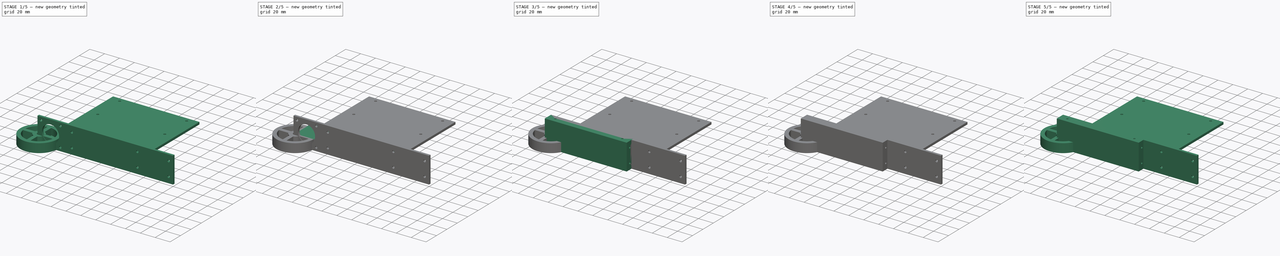
[diagram: build sequence overview — one tinted view per stage of 5, left to right]
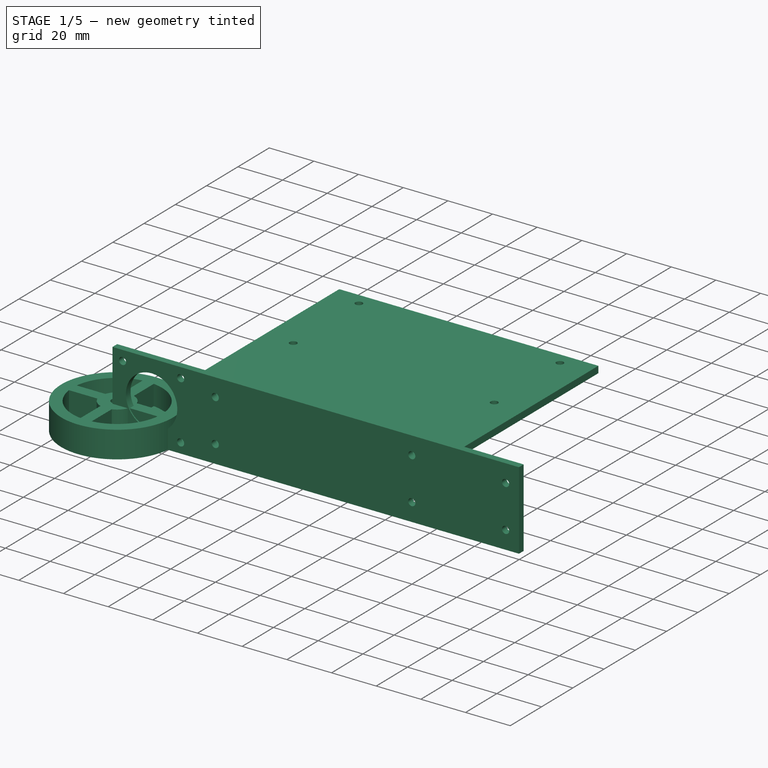
[diagram: stage 1 of 5 — iso view after this stage's code; geometry added in this stage tinted green]
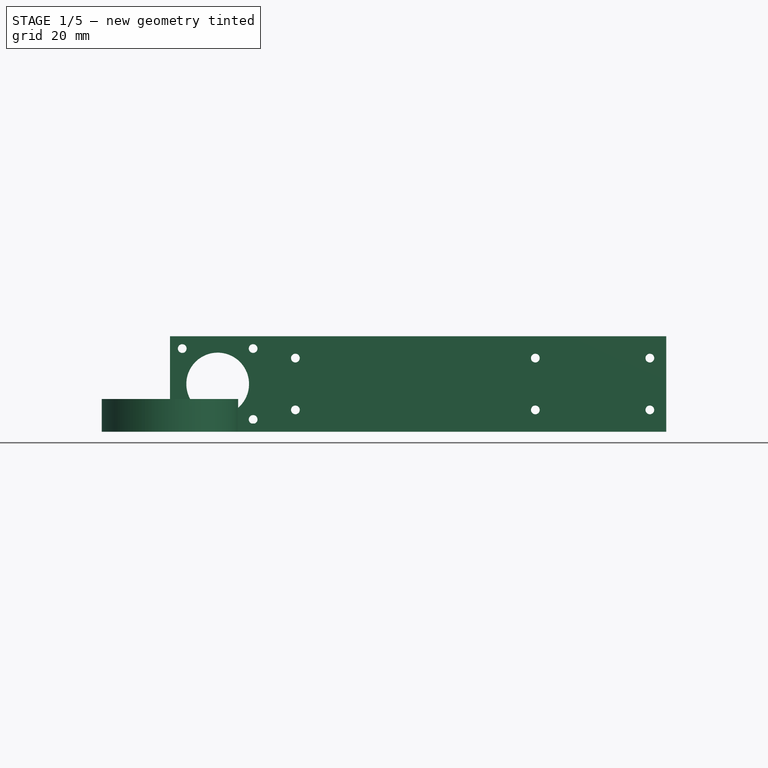
[diagram: stage 1 of 5 — front view after this stage's code; geometry added in this stage tinted green]
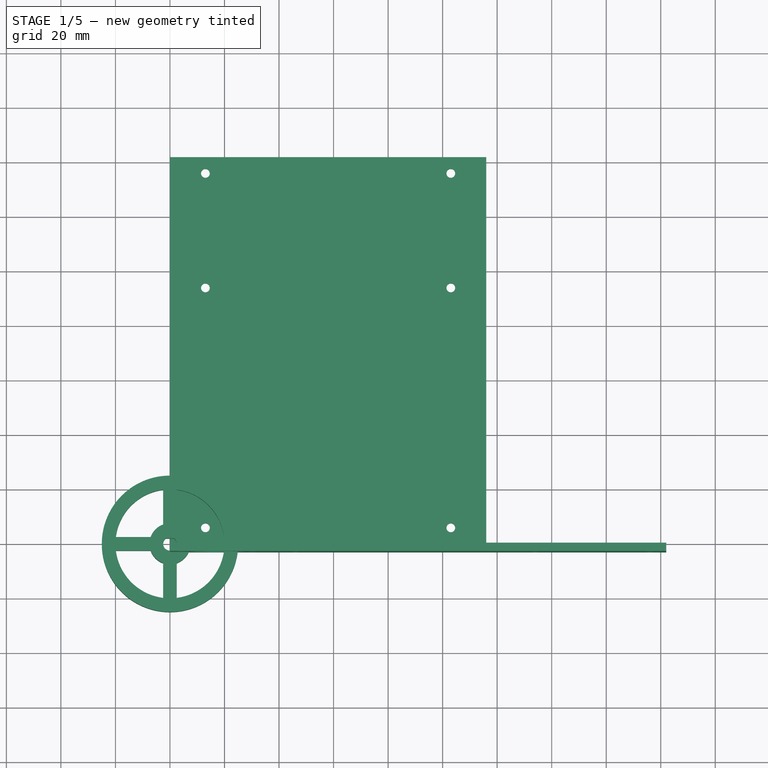
[diagram: stage 1 of 5 — top view after this stage's code; geometry added in this stage tinted green]
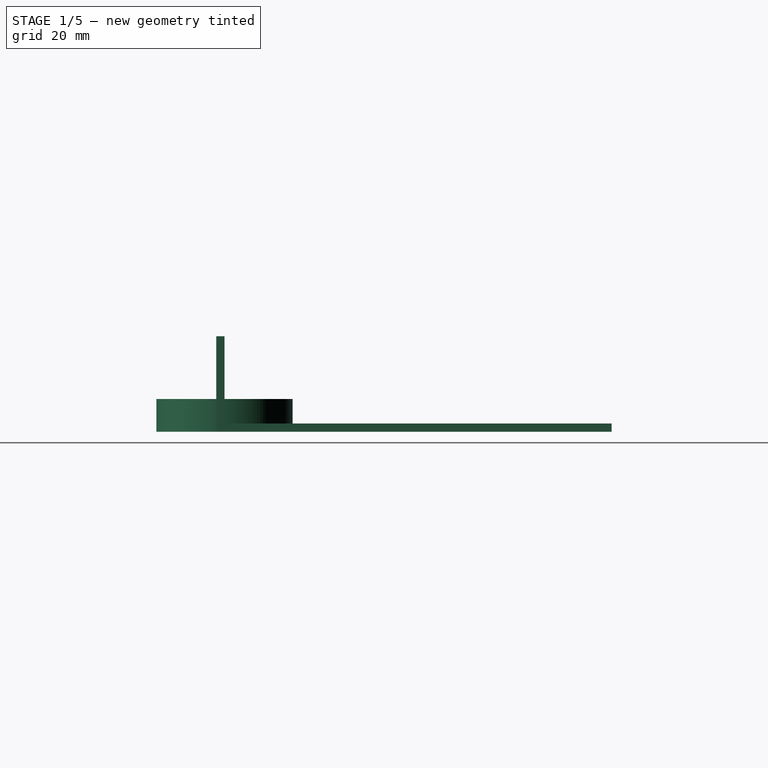
[diagram: stage 1 of 5 — right view after this stage's code; geometry added in this stage tinted green]
FCSTD DOCUMENT  (FreeCAD 0.21R33771 (Git))
Label: SelfBalancing
License: All rights reserved
LicenseURL: http://en.wikipedia.org/wiki/All_rights_reserved
objects: Sketcher::SketchObject×26, PartDesign::Pocket×15, PartDesign::Pad×11, PartDesign::Body×11
note: 89 computed .brp shape members not serialized (recipe doc carries the construction recipe); baked Part::Feature solids carry a one-line shape summary decoded from their .brp

FEATURE [PartDesign::Body] Body005  label="SeparatorBodyThird"
  Group = -> [Sketch016,Pad005,Sketch017,Pocket010,Sketch018,Pocket011,Sketch019,Pocket012,Sketch020,Pocket013,Sketch021,Pocket014]
  Origin = -> Origin005
  Placement = pos=(52,-2.8e-14,35) rot=(0.57735,0.57735,-0.57735;4.18879rad)
  Tip = -> Pocket014
FEATURE [Sketcher::SketchObject] Sketch022
  FullyConstrained = true
  MapMode = 5
  Support = -> [XY_Plane006]
  sketch-geometry (12):
    g0: LineSegment StartX=0 StartY=0 StartZ=0 EndX=116 EndY=0 EndZ=0
    g1: LineSegment StartX=116 StartY=0 StartZ=0 EndX=116 EndY=100 EndZ=0
    g2: LineSegment StartX=116 StartY=100 StartZ=0 EndX=96 EndY=100 EndZ=0
    g3: LineSegment StartX=96 StartY=100 StartZ=0 EndX=96 EndY=88.1 EndZ=0
    g4: LineSegment StartX=96 StartY=88.1 StartZ=0 EndX=20 EndY=88.1 EndZ=0
    g5: LineSegment StartX=20 StartY=88.1 StartZ=0 EndX=20 EndY=100 EndZ=0
    g6: LineSegment StartX=20 StartY=100 StartZ=0 EndX=0 EndY=100 EndZ=0
    g7: LineSegment StartX=0 StartY=100 StartZ=0 EndX=0 EndY=0 EndZ=0
    g8: Circle CenterX=13 CenterY=94 CenterZ=0 NormalX=0 NormalY=0 NormalZ=1 AngleXU=0 Radius=1.6
    g9: Circle CenterX=103 CenterY=94 CenterZ=0 NormalX=0 NormalY=0 NormalZ=1 AngleXU=0 Radius=1.6
    g10: Circle CenterX=13 CenterY=6 CenterZ=0 NormalX=0 NormalY=0 NormalZ=1 AngleXU=0 Radius=1.6
    g11: Circle CenterX=103 CenterY=6 CenterZ=0 NormalX=0 NormalY=0 NormalZ=1 AngleXU=0 Radius=1.6
  constraints (35):
    c: Coincident(g-1,g0)
    c: PointOnObject(g0,g-1)
    c: Coincident(g0,g1)
    c: Vertical(g1)
    c: Horizontal(g2)
    c: Coincident(g2,g3)
    c: Vertical(g3)
    c: Coincident(g3,g4)
    c: Horizontal(g4)
    c: Coincident(g4,g5)
    c: Vertical(g5)
    c: Coincident(g5,g6)
    c: PointOnObject(g6,g-2)
    c: Horizontal(g6)
    c: Coincident(g6,g7)
    c: Coincident(g7,g0)
    c: Coincident(g2,g1)
    c: DistanceX(g0,g0) = 116
    c: DistanceX(g6,g6) = 20
    c: Equal(g6,g2)
    c: Equal(g8,g9)
    c: Equal(g10,g11)
    c: Equal(g11,g9)
    c: Horizontal(g8,g9)
    c: Horizontal(g10,g11)
    c: Vertical(g8,g10)
    c: Vertical(g9,g11)
    c: DistanceY(g10,g8) = 88
    c: DistanceY(g0,g10) = 6
    c: DistanceY(g8,g6) = 6
    c: Horizontal(g5,g2)
    c: Diameter(g8) = 3.2
    c: DistanceX(g0,g10) = 13
    c: DistanceX(g0,g11) = 103
    c: DistanceY(g5,g5) = 11.9
FEATURE [Sketcher::SketchObject] Sketch023
  FullyConstrained = true
  MapMode = 5
  Support = -> [XY_Plane007]
  sketch-geometry (10):
    g0: LineSegment StartX=0 StartY=0 StartZ=0 EndX=116 EndY=0 EndZ=0
    g1: LineSegment StartX=116 StartY=0 StartZ=0 EndX=116 EndY=142 EndZ=0
    g2: LineSegment StartX=116 StartY=142 StartZ=0 EndX=0 EndY=142 EndZ=0
    g3: LineSegment StartX=0 StartY=142 StartZ=0 EndX=0 EndY=0 EndZ=0
    g4: Circle CenterX=13 CenterY=6 CenterZ=0 NormalX=0 NormalY=0 NormalZ=1 AngleXU=0 Radius=1.6
    g5: Circle CenterX=103 CenterY=6 CenterZ=0 NormalX=0 NormalY=0 NormalZ=1 AngleXU=0 Radius=1.6
    g6: Circle CenterX=13 CenterY=94 CenterZ=0 NormalX=0 NormalY=0 NormalZ=1 AngleXU=0 Radius=1.6
    g7: Circle CenterX=103 CenterY=94 CenterZ=0 NormalX=0 NormalY=0 NormalZ=1 AngleXU=0 Radius=1.6
    g8: Circle CenterX=13 CenterY=136 CenterZ=0 NormalX=0 NormalY=0 NormalZ=1 AngleXU=0 Radius=1.6
    g9: Circle CenterX=103 CenterY=136 CenterZ=0 NormalX=0 NormalY=0 NormalZ=1 AngleXU=0 Radius=1.6
  constraints (29):
    c: Coincident(g0,g1)
    c: Coincident(g1,g2)
    c: Coincident(g2,g3)
    c: Coincident(g3,g0)
    c: Horizontal(g0)
    c: Horizontal(g2)
    c: Vertical(g1)
    c: Vertical(g3)
    c: Coincident(g0,g-1)
    c: DistanceY(g1,g1) = 142
    c: DistanceX(g2,g2) = 116
    c: Equal(g8,g9)
    c: Equal(g6,g7)
    c: Equal(g6,g8)
    c: Equal(g4,g5)
    c: Equal(g5,g7)
    c: Vertical(g8,g6)
    c: Vertical(g6,g4)
    c: Vertical(g9,g7)
    c: Vertical(g5,g7)
    c: Horizontal(g8,g9)
    c: Horizontal(g6,g7)
    c: Horizontal(g4,g5)
    c: DistanceX(g0,g4) = 13
    c: DistanceX(g0,g5) = 103
    c: DistanceY(g0,g4) = 6
    c: DistanceY(g7,g1) = 48
    c: DistanceY(g9,g1) = 6
    c: Diameter(g7) = 3.2
FEATURE [PartDesign::Pad] Pad006
  Direction = (0,0,1)
  Length = 3
  Length2 = 10
  Profile = -> Sketch023
  ReferenceAxis = -> Sketch023 [N_Axis]
  Type = 0
FEATURE [PartDesign::Body] Body007  label="BackPanelBody"
  Group = -> [Sketch023,Pad006]
  Origin = -> Origin007
  Placement = pos=(40,113,35) rot=(0,0,-1;1.5708rad)
  Tip = -> Pad006
FEATURE [PartDesign::Pad] Pad007
  Direction = (0,0,1)
  Length = 3
  Length2 = 10
  Profile = -> Sketch022
  ReferenceAxis = -> Sketch022 [N_Axis]
  Type = 0
FEATURE [PartDesign::Body] Body006  label="FrontPanelBody"
  Group = -> [Sketch022,Pad007]
  Origin = -> Origin006
  Placement = pos=(40,113,-3) rot=(0,0,-1;1.5708rad)
  Tip = -> Pad007
FEATURE [Sketcher::SketchObject] Sketch024
  FullyConstrained = true
  MapMode = 5
  Support = -> [XY_Plane008]
  sketch-geometry (20):
    g0: Circle CenterX=0 CenterY=0 CenterZ=0 NormalX=0 NormalY=0 NormalZ=1 AngleXU=0 Radius=25
    g1: ArcOfCircle CenterX=0 CenterY=0 CenterZ=0 NormalX=0 NormalY=0 NormalZ=1 AngleXU=0 Radius=20 StartAngle=1.69612 EndAngle=3.01626
    g2: ArcOfCircle CenterX=0 CenterY=0 CenterZ=0 NormalX=0 NormalY=0 NormalZ=1 AngleXU=0 Radius=7.5 StartAngle=3.48143 EndAngle=4.37255
    g3: LineSegment StartX=-2.5 StartY=7.07107 StartZ=0 EndX=-2.5 EndY=19.8431 EndZ=0
    g4: LineSegment StartX=2.5 StartY=7.07107 StartZ=0 EndX=2.5 EndY=19.8431 EndZ=0
    g5: LineSegment StartX=7.07107 StartY=2.5 StartZ=0 EndX=19.8431 EndY=2.5 EndZ=0
    g6: LineSegment StartX=7.07107 StartY=-2.5 StartZ=0 EndX=19.8431 EndY=-2.5 EndZ=0
    g7: LineSegment StartX=-19.8431 StartY=2.5 StartZ=0 EndX=-7.07107 EndY=2.5 EndZ=0
    g8: LineSegment StartX=-19.8431 StartY=-2.5 StartZ=0 EndX=-7.07107 EndY=-2.5 EndZ=0
    g9: LineSegment StartX=-2.5 StartY=-7.07107 StartZ=0 EndX=-2.5 EndY=-19.8431 EndZ=0
    g10: LineSegment StartX=2.5 StartY=-7.07107 StartZ=0 EndX=2.5 EndY=-19.8431 EndZ=0
    g11: ArcOfCircle CenterX=0 CenterY=0 CenterZ=0 NormalX=0 NormalY=0 NormalZ=1 AngleXU=0 Radius=20 StartAngle=3.26692 EndAngle=4.58706
    g12: ArcOfCircle CenterX=0 CenterY=0 CenterZ=0 NormalX=0 NormalY=0 NormalZ=1 AngleXU=0 Radius=20 StartAngle=4.83772 EndAngle=6.15786
    g13: ArcOfCircle CenterX=0 CenterY=0 CenterZ=0 NormalX=0 NormalY=0 NormalZ=1 AngleXU=0 Radius=20 StartAngle=0.125328 EndAngle=1.44547
    g14: ArcOfCircle CenterX=0 CenterY=0 CenterZ=0 NormalX=0 NormalY=0 NormalZ=1 AngleXU=0 Radius=7.5 StartAngle=1.91063 EndAngle=2.80176
    g15: ArcOfCircle CenterX=0 CenterY=0 CenterZ=0 NormalX=0 NormalY=0 NormalZ=1 AngleXU=0 Radius=7.5 StartAngle=0.339837 EndAngle=1.23096
    g16: ArcOfCircle CenterX=0 CenterY=0 CenterZ=0 NormalX=0 NormalY=0 NormalZ=1 AngleXU=0 Radius=7.5 StartAngle=5.05223 EndAngle=5.94335
    g17: ArcOfCircle CenterX=0 CenterY=0 CenterZ=0 NormalX=0 NormalY=0 NormalZ=1 AngleXU=0 Radius=2.5 StartAngle=2.2143 EndAngle=7.21048
    g18: LineSegment StartX=-1.5 StartY=2 StartZ=0 EndX=1.5 EndY=2 EndZ=0
    g19: LineSegment StartX=-1.5 StartY=-2.5 StartZ=0 EndX=1.5 EndY=-2.5 EndZ=0
  constraints (64):
    c: Coincident(g0,g-1)
    c: Diameter(g0) = 50
    c: Coincident(g1,g0)
    c: Diameter(g1) = 40
    c: Coincident(g2,g0)
    c: Diameter(g2) = 15
    c: Vertical(g3)
    c: Vertical(g4)
    c: Horizontal(g5)
    c: PointOnObject(g5,g1)
    c: PointOnObject(g6,g1)
    c: Horizontal(g7)
    c: Horizontal(g8)
    c: PointOnObject(g9,g1)
    c: Vertical(g9)
    c: PointOnObject(g10,g1)
    c: Equal(g6,g5)
    c: Equal(g10,g9)
    c: Horizontal(g6)
    c: Vertical(g10)
    c: Equal(g3,g4)
    c: Equal(g7,g8)
    c: Horizontal(g7,g5)
    c: Vertical(g3,g9)
    c: DistanceX(g3,g4) = 5
    c: DistanceY(g6,g5) = 5
    c: Coincident(g13,g4)
    c: Coincident(g1,g3)
    c: Equal(g1,g11)
    c: Coincident(g1,g7)
    c: Coincident(g11,g8)
    c: Coincident(g1,g11)
    c: Equal(g11,g12)
    c: PointOnObject(g11,g9)
    c: PointOnObject(g12,g10)
    c: Coincident(g11,g12)
    c: Equal(g12,g13)
    c: PointOnObject(g12,g6)
    c: PointOnObject(g13,g5)
    c: Coincident(g12,g13)
    c: Coincident(g14,g7)
    c: Coincident(g2,g8)
    c: Equal(g2,g14)
    c: Coincident(g15,g4)
    c: Coincident(g14,g3)
    c: Coincident(g2,g14)
    c: Equal(g2,g15)
    c: Coincident(g16,g6)
    c: Coincident(g15,g5)
    c: Coincident(g2,g15)
    c: Equal(g2,g16)
    c: Coincident(g2,g9)
    c: Coincident(g16,g10)
    c: Coincident(g2,g16)
    c: Coincident(g17,g0)
    c: Diameter(g17) = 5
    c: Horizontal(g18)
    c: Horizontal(g19)
    c: Tangent(g19,g17)
    c: Vertical(g18,g19)
    c: Equal(g18,g19)
    c: DistanceY(g19,g18) = 4.5
    c: Coincident(g17,g18)
    c: Coincident(g17,g18)
FEATURE [PartDesign::Pad] Pad008
  Direction = (0,0,1)
  Length = 12
  Length2 = 10
  Profile = -> Sketch024
  ReferenceAxis = -> Sketch024 [N_Axis]
  Type = 0
FEATURE [PartDesign::Body] Body008  label="WheelBody001"
  Group = -> [Sketch024,Pad008]
  Origin = -> Origin008
  Placement = pos=(18,117,18) rot=(-1,0,0;1.5708rad)
  Tip = -> Pad008
FEATURE [Sketcher::SketchObject] Sketch025
  FullyConstrained = true
  MapMode = 5
  Placement = pos=(0,0,0) rot=(1,0,0;1.5708rad)
  Support = -> [XZ_Plane009]
  sketch-geometry (19):
    g0: LineSegment StartX=0 StartY=0 StartZ=0 EndX=182 EndY=0 EndZ=0
    g1: LineSegment StartX=182 StartY=0 StartZ=0 EndX=182 EndY=35 EndZ=0
    g2: LineSegment StartX=182 StartY=35 StartZ=0 EndX=0 EndY=35 EndZ=0
    g3: LineSegment StartX=0 StartY=35 StartZ=0 EndX=0 EndY=0 EndZ=0
    g4: Circle CenterX=17.5 CenterY=17.5 CenterZ=0 NormalX=0 NormalY=0 NormalZ=1 AngleXU=0 Radius=11.5
    g5: Circle CenterX=4.5 CenterY=30.5 CenterZ=0 NormalX=0 NormalY=0 NormalZ=1 AngleXU=0 Radius=1.6
    g6: Circle CenterX=30.5 CenterY=30.5 CenterZ=0 NormalX=0 NormalY=0 NormalZ=1 AngleXU=0 Radius=1.6
    g7: Circle CenterX=4.5 CenterY=4.5 CenterZ=0 NormalX=0 NormalY=0 NormalZ=1 AngleXU=0 Radius=1.6
    g8: Circle CenterX=30.5 CenterY=4.5 CenterZ=0 NormalX=0 NormalY=0 NormalZ=1 AngleXU=0 Radius=1.6
    g9: Circle CenterX=134 CenterY=27 CenterZ=0 NormalX=0 NormalY=0 NormalZ=1 AngleXU=0 Radius=1.6
    g10: Circle CenterX=134 CenterY=8 CenterZ=0 NormalX=0 NormalY=0 NormalZ=1 AngleXU=0 Radius=1.6
    g11: LineSegment StartX=35 StartY=35 StartZ=0 EndX=35 EndY=0 EndZ=0
    g12: LineSegment StartX=0 StartY=35 StartZ=0 EndX=35 EndY=0 EndZ=0
    g13: LineSegment StartX=35 StartY=35 StartZ=0 EndX=17.5 EndY=17.5 EndZ=0
    g14: LineSegment StartX=17.5 StartY=17.5 StartZ=0 EndX=0 EndY=0 EndZ=0
    g15: Circle CenterX=46 CenterY=27 CenterZ=0 NormalX=0 NormalY=0 NormalZ=1 AngleXU=0 Radius=1.6
    g16: Circle CenterX=46 CenterY=8 CenterZ=0 NormalX=0 NormalY=0 NormalZ=1 AngleXU=0 Radius=1.6
    g17: Circle CenterX=176 CenterY=27 CenterZ=0 NormalX=0 NormalY=0 NormalZ=1 AngleXU=0 Radius=1.6
    g18: Circle CenterX=176 CenterY=8 CenterZ=0 NormalX=0 NormalY=0 NormalZ=1 AngleXU=0 Radius=1.6
  constraints (54):
    c: Coincident(g0,g1)
    c: Coincident(g1,g2)
    c: Coincident(g2,g3)
    c: Coincident(g3,g0)
    c: Horizontal(g0)
    c: Horizontal(g2)
    c: Vertical(g1)
    c: Vertical(g3)
    c: Coincident(g0,g-1)
    c: Equal(g5,g6)
    c: Equal(g7,g8)
    c: Equal(g7,g5)
    c: Horizontal(g5,g6)
    c: Horizontal(g7,g8)
    c: Vertical(g5,g7)
    c: Vertical(g6,g8)
    c: Diameter(g4) = 23
    c: DistanceX(g2,g2) = 182
    c: Equal(g9,g10)
    c: Equal(g6,g9)
    c: Vertical(g9,g10)
    c: DistanceX(g5,g6) = 26
    c: DistanceY(g7,g5) = 26
    c: DistanceY(g1,g1) = 35
    c: PointOnObject(g11,g2)
    c: PointOnObject(g11,g0)
    c: Vertical(g11)
    c: Coincident(g2,g12)
    c: Coincident(g12,g11)
    c: Coincident(g11,g13)
    c: PointOnObject(g13,g12)
    c: Coincident(g13,g14)
    c: Coincident(g14,g0)
    c: Parallel(g14,g13)
    c: DistanceX(g2,g11) = 35
    c: PointOnObject(g6,g13)
    c: PointOnObject(g5,g12)
    c: Coincident(g4,g13)
    c: Vertical(g15,g16)
    c: DistanceX(g9,g1) = 48
    c: DistanceY(g16,g15) = 19
    c: DistanceX(g15,g1) = 136
    c: DistanceY(g15,g2) = 8
    c: Equal(g15,g6)
    c: Equal(g16,g8)
    c: Diameter(g9) = 3.2
    c: Equal(g9,g17)
    c: Equal(g17,g18)
    c: Horizontal(g15,g9)
    c: Horizontal(g9,g17)
    c: Horizontal(g10,g18)
    c: Horizontal(g10,g16)
    c: Vertical(g17,g18)
    c: DistanceX(g17,g1) = 6
FEATURE [PartDesign::Pad] Pad009
  Direction = (0,-1,-2e-16)
  Length = 3
  Length2 = 10
  Placement = pos=(0,0,0) rot=(1,0,0;1.5708rad)
  Profile = -> Sketch025
  ReferenceAxis = -> Sketch025 [N_Axis]
  Type = 0
FEATURE [PartDesign::Body] Body009  label="SideBody001"
  Group = -> [Sketch025,Pad009]
  Origin = -> Origin009
  Placement = pos=(0,113,0) rot=(0,0,1;0rad)
  Tip = -> Pad009
FEATURE [Sketcher::SketchObject] Sketch026
  FullyConstrained = true
  MapMode = 5
  Support = -> [XY_Plane010]
  sketch-geometry (2):
    g0: Circle CenterX=0 CenterY=0 CenterZ=0 NormalX=0 NormalY=0 NormalZ=1 AngleXU=0 Radius=25
    g1: Circle CenterX=0 CenterY=0 CenterZ=0 NormalX=0 NormalY=0 NormalZ=1 AngleXU=0 Radius=23.5
  constraints (4):
    c: Coincident(g0,g-1)
    c: Coincident(g1,g0)
    c: Diameter(g1) = 47
    c: Diameter(g0) = 50
FEATURE [PartDesign::Pad] Pad010
  Direction = (0,0,1)
  Length = 12
  Length2 = 10
  Profile = -> Sketch026
  ReferenceAxis = -> Sketch026 [N_Axis]
  Type = 0
FEATURE [PartDesign::Body] Body010  label="WheelRubberBody001"
  Group = -> [Sketch026,Pad010]
  Origin = -> Origin010
  Placement = pos=(18,129,18) rot=(1,0,0;1.5708rad)
  Tip = -> Pad010
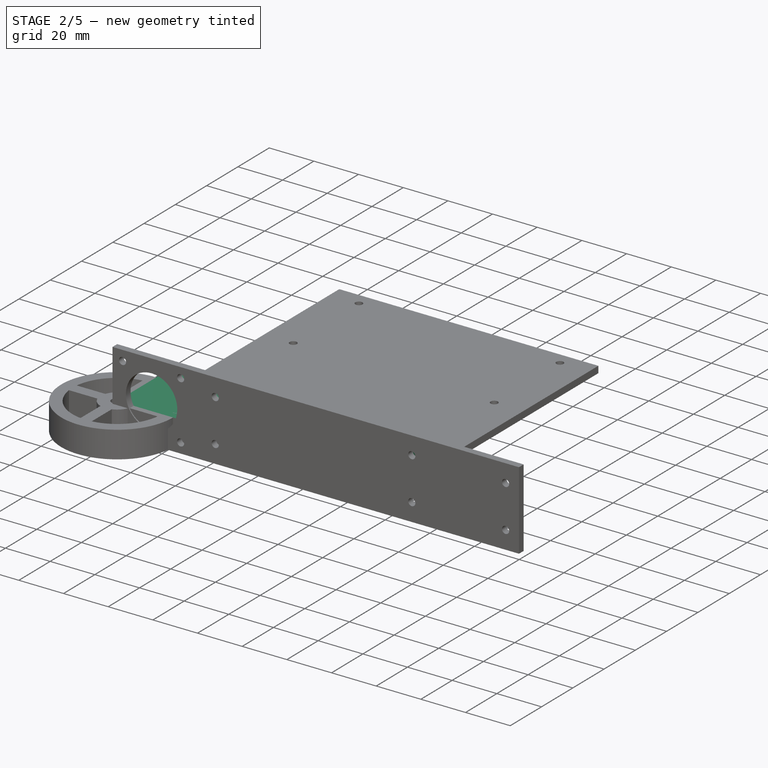
[diagram: stage 2 of 5 — iso view after this stage's code; geometry added in this stage tinted green]
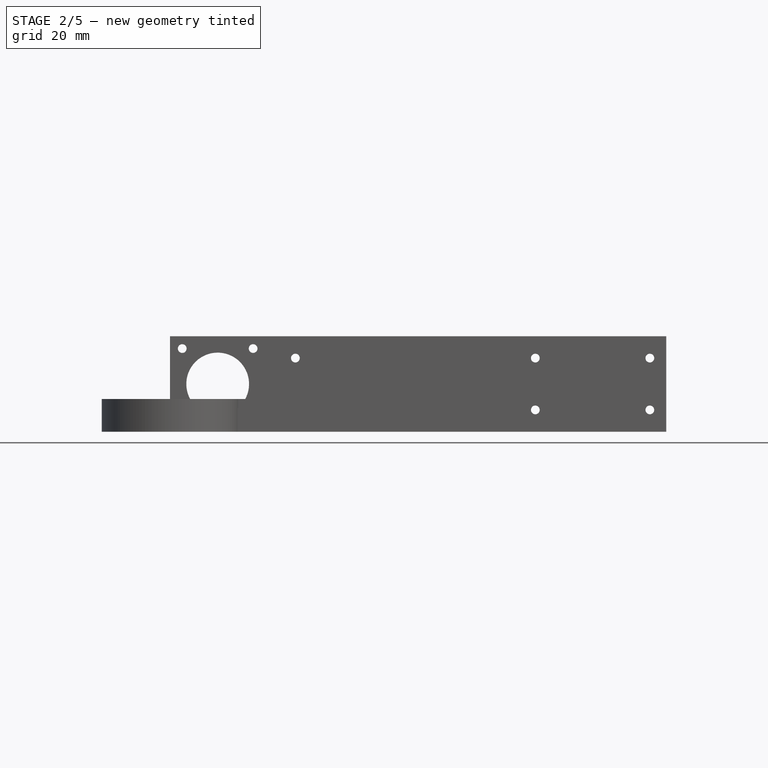
[diagram: stage 2 of 5 — front view after this stage's code; geometry added in this stage tinted green]
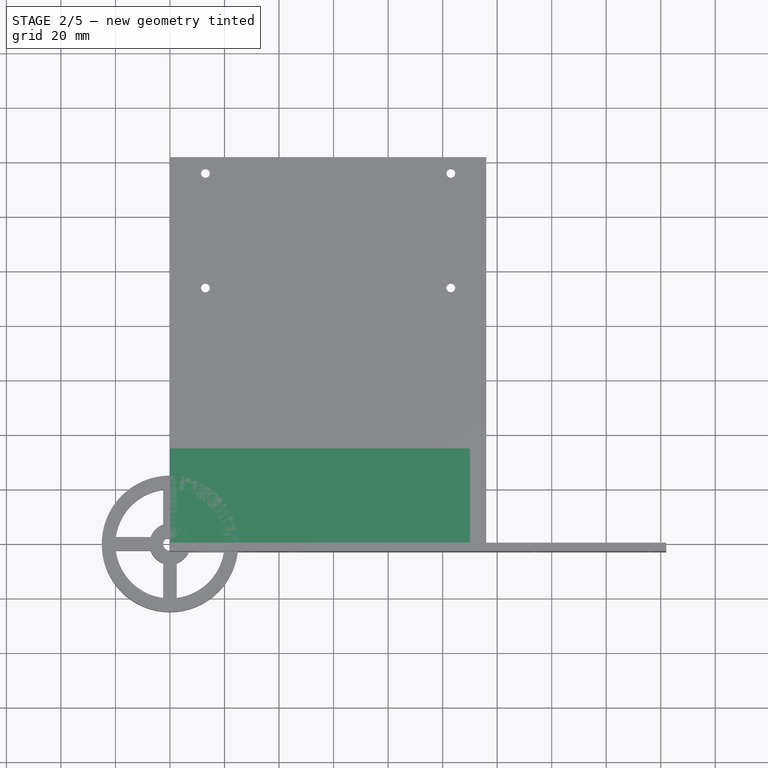
[diagram: stage 2 of 5 — top view after this stage's code; geometry added in this stage tinted green]
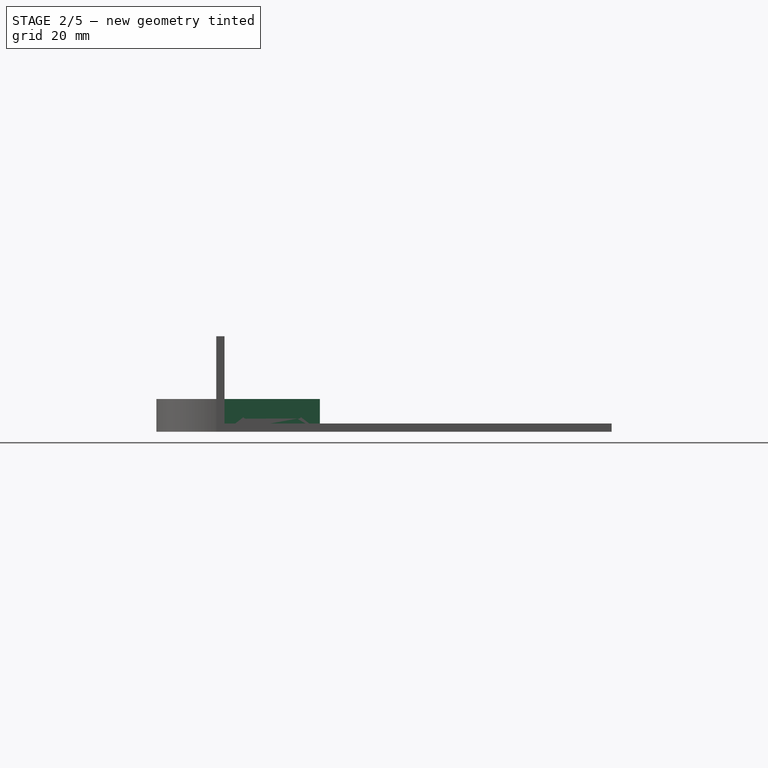
[diagram: stage 2 of 5 — right view after this stage's code; geometry added in this stage tinted green]
FEATURE [PartDesign::Body] Body004  label="SeparatorBodySecond"
  Group = -> [Sketch006,Pad004,Sketch007,Pocket002,Sketch008,Pocket003,Sketch012,Pocket006,Sketch013,Pocket007,Sketch014,Pocket008,Sketch015,Pocket009]
  Origin = -> Origin004
  Placement = pos=(128,-2.8e-14,0) rot=(0,0,1;1.5708rad)
  Tip = -> Pocket009
FEATURE [Sketcher::SketchObject] Sketch016
  FullyConstrained = true
  MapMode = 5
  Support = -> [XY_Plane005]
  sketch-geometry (4):
    g0: LineSegment StartX=0 StartY=0 StartZ=0 EndX=110 EndY=0 EndZ=0
    g1: LineSegment StartX=110 StartY=0 StartZ=0 EndX=110 EndY=35 EndZ=0
    g2: LineSegment StartX=110 StartY=35 StartZ=0 EndX=0 EndY=35 EndZ=0
    g3: LineSegment StartX=0 StartY=35 StartZ=0 EndX=0 EndY=0 EndZ=0
  constraints (11):
    c: Coincident(g0,g1)
    c: Coincident(g1,g2)
    c: Coincident(g2,g3)
    c: Coincident(g3,g0)
    c: Horizontal(g0)
    c: Horizontal(g2)
    c: Vertical(g1)
    c: Vertical(g3)
    c: Coincident(g0,g-1)
    c: DistanceY(g1,g1) = 35
    c: DistanceX(g2,g2) = 110
FEATURE [PartDesign::Pad] Pad005
  Direction = (0,0,1)
  Length = 12
  Length2 = 10
  Profile = -> Sketch016
  ReferenceAxis = -> Sketch016 [N_Axis]
  Type = 0
FEATURE [Sketcher::SketchObject] Sketch017
  FullyConstrained = true
  MapMode = 5
  Placement = pos=(0,0,0) rot=(0.57735,-0.57735,-0.57735;2.0944rad)
  Support = -> [Pad005]
  sketch-geometry (2):
    g0: Circle CenterX=-27 CenterY=6 CenterZ=0 NormalX=0 NormalY=0 NormalZ=1 AngleXU=0 Radius=1.25
    g1: Circle CenterX=-8 CenterY=6 CenterZ=0 NormalX=0 NormalY=0 NormalZ=1 AngleXU=0 Radius=1.25
  constraints (6):
    c: Equal(g0,g1)
    c: Horizontal(g0,g1)
    c: DistanceX(g1,g-1) = 8
    c: DistanceX(g0,g1) = 19
    c: DistanceY(g-1,g1) = 6
    c: Diameter(g1) = 2.5
FEATURE [PartDesign::Pocket] Pocket010
  BaseFeature = -> Pad005
  Direction = (1,0,0)
  Length = 20
  Length2 = 5
  Profile = -> Sketch017
  ReferenceAxis = -> Sketch017 [N_Axis]
  Type = 0
FEATURE [Sketcher::SketchObject] Sketch018
  FullyConstrained = true
  MapMode = 5
  Placement = pos=(110,0,0) rot=(0.57735,0.57735,0.57735;2.0944rad)
  Support = -> [Pocket010]
  sketch-geometry (2):
    g0: Circle CenterX=8 CenterY=6 CenterZ=0 NormalX=0 NormalY=0 NormalZ=1 AngleXU=0 Radius=1.25
    g1: Circle CenterX=27 CenterY=6 CenterZ=0 NormalX=0 NormalY=0 NormalZ=1 AngleXU=0 Radius=1.25
  constraints (6):
    c: Equal(g1,g0)
    c: DistanceX(g-1,g0) = 8
    c: DistanceX(g0,g1) = 19
    c: Diameter(g1) = 2.5
    c: DistanceY(g-1,g0) = 6
    c: Horizontal(g0,g1)
FEATURE [PartDesign::Pocket] Pocket011
  BaseFeature = -> Pocket010
  Direction = (-1,0,0)
  Length = 20
  Length2 = 5
  Profile = -> Sketch018
  ReferenceAxis = -> Sketch018 [N_Axis]
  Type = 0
FEATURE [Sketcher::SketchObject] Sketch019
  FullyConstrained = true
  MapMode = 5
  Placement = pos=(0,35,0) rot=(0,0.707107,0.707107;3.14159rad)
  Support = -> [Pocket011]
  sketch-geometry (2):
    g0: Circle CenterX=-100 CenterY=6 CenterZ=0 NormalX=0 NormalY=0 NormalZ=1 AngleXU=0 Radius=1.25
    g1: Circle CenterX=-10 CenterY=6 CenterZ=0 NormalX=0 NormalY=0 NormalZ=1 AngleXU=0 Radius=1.25
  constraints (6):
    c: Equal(g0,g1)
    c: Horizontal(g0,g1)
    c: DistanceY(g-1,g1) = 6
    c: DistanceX(g1,g-1) = 10
    c: DistanceX(g0,g-1) = 100
    c: Diameter(g1) = 2.5
FEATURE [PartDesign::Pocket] Pocket012
  BaseFeature = -> Pocket011
  Direction = (0,-1,2e-16)
  Length = 7
  Length2 = 5
  Profile = -> Sketch019
  ReferenceAxis = -> Sketch019 [N_Axis]
  Type = 0
FEATURE [Sketcher::SketchObject] Sketch020
  FullyConstrained = true
  MapMode = 5
  Placement = pos=(0,0,0) rot=(1,0,0;1.5708rad)
  Support = -> [Pocket012]
  sketch-geometry (2):
    g0: Circle CenterX=10 CenterY=6 CenterZ=0 NormalX=0 NormalY=0 NormalZ=1 AngleXU=0 Radius=1.25
    g1: Circle CenterX=100 CenterY=6 CenterZ=0 NormalX=0 NormalY=0 NormalZ=1 AngleXU=0 Radius=1.25
  constraints (6):
    c: Horizontal(g0,g1)
    c: Equal(g0,g1)
    c: DistanceX(g-1,g0) = 10
    c: DistanceX(g-1,g1) = 100
    c: Diameter(g1) = 2.5
    c: DistanceY(g-1,g0) = 6
FEATURE [PartDesign::Pocket] Pocket013
  BaseFeature = -> Pocket012
  Direction = (0,1,-2e-16)
  Length = 7
  Length2 = 5
  Profile = -> Sketch020
  ReferenceAxis = -> Sketch020 [N_Axis]
  Type = 0
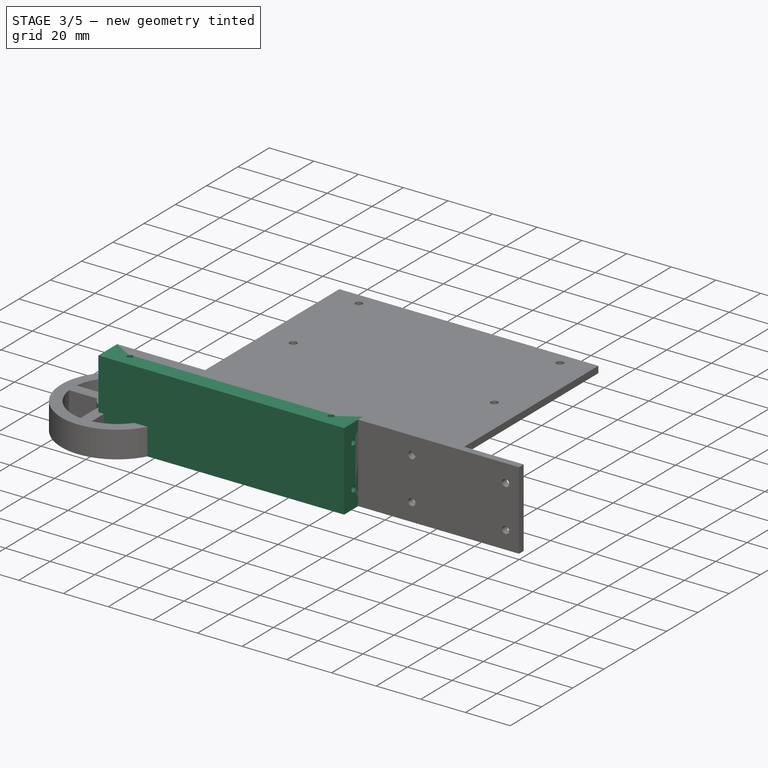
[diagram: stage 3 of 5 — iso view after this stage's code; geometry added in this stage tinted green]
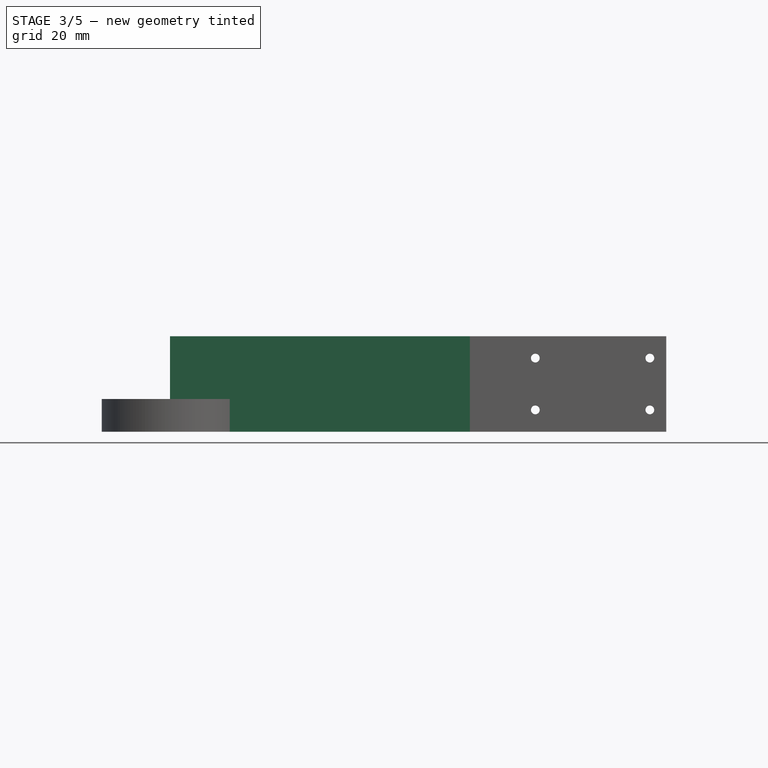
[diagram: stage 3 of 5 — front view after this stage's code; geometry added in this stage tinted green]
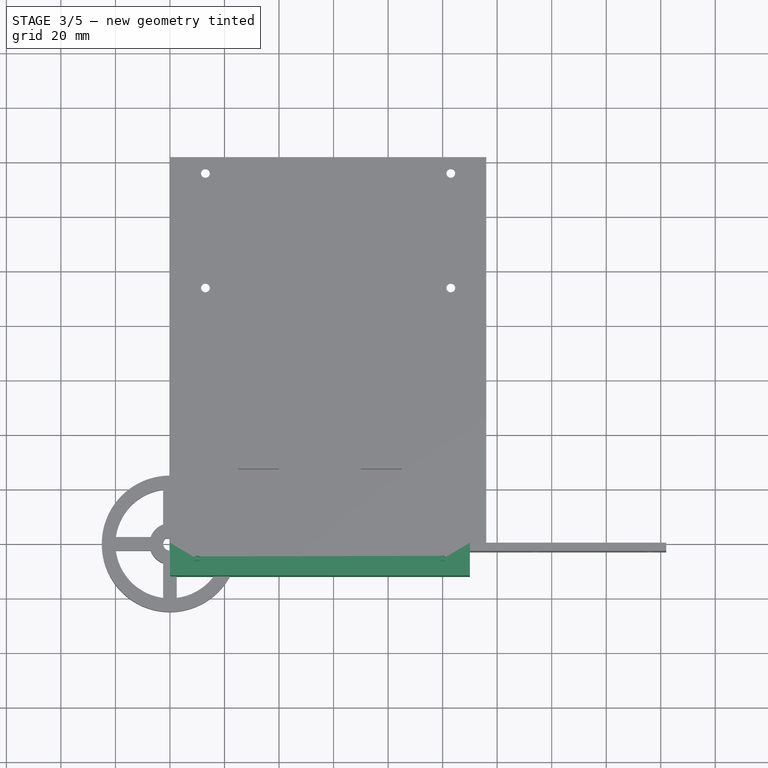
[diagram: stage 3 of 5 — top view after this stage's code; geometry added in this stage tinted green]
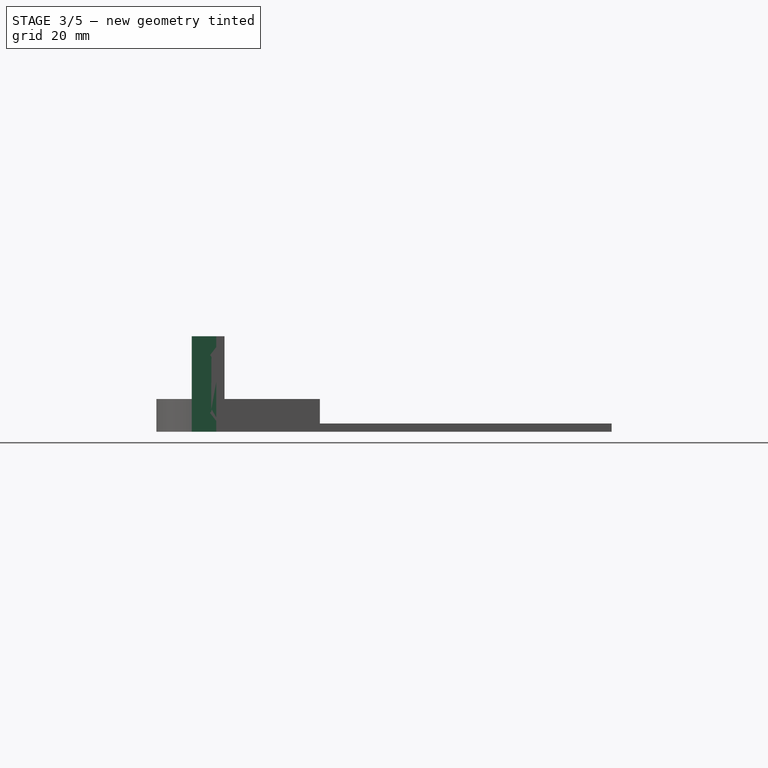
[diagram: stage 3 of 5 — right view after this stage's code; geometry added in this stage tinted green]
FEATURE [Sketcher::SketchObject] Sketch006
  FullyConstrained = true
  MapMode = 5
  Placement = pos=(0,0,0) rot=(1,0,0;1.5708rad)
  Support = -> [XZ_Plane004]
  sketch-geometry (4):
    g0: LineSegment StartX=0 StartY=0 StartZ=0 EndX=110 EndY=0 EndZ=0
    g1: LineSegment StartX=110 StartY=0 StartZ=0 EndX=110 EndY=35 EndZ=0
    g2: LineSegment StartX=110 StartY=35 StartZ=0 EndX=0 EndY=35 EndZ=0
    g3: LineSegment StartX=0 StartY=35 StartZ=0 EndX=0 EndY=0 EndZ=0
  constraints (11):
    c: Coincident(g0,g1)
    c: Coincident(g1,g2)
    c: Coincident(g2,g3)
    c: Coincident(g3,g0)
    c: Horizontal(g0)
    c: Horizontal(g2)
    c: Vertical(g1)
    c: Vertical(g3)
    c: Coincident(g0,g-1)
    c: DistanceX(g2,g2) = 110
    c: DistanceY(g1,g1) = 35
FEATURE [PartDesign::Pad] Pad004
  Direction = (0,-1,2e-16)
  Length = 12
  Length2 = 10
  Placement = pos=(0,0,0) rot=(1,0,0;1.5708rad)
  Profile = -> Sketch006
  ReferenceAxis = -> Sketch006 [N_Axis]
  Type = 0
FEATURE [Sketcher::SketchObject] Sketch007
  FullyConstrained = true
  MapMode = 5
  Placement = pos=(110,0,0) rot=(0.707107,0,0.707107;3.14159rad)
  Support = -> [Pad004]
  sketch-geometry (2):
    g0: Circle CenterX=8 CenterY=6 CenterZ=0 NormalX=0 NormalY=0 NormalZ=1 AngleXU=0 Radius=1.25
    g1: Circle CenterX=27 CenterY=6 CenterZ=0 NormalX=0 NormalY=0 NormalZ=1 AngleXU=0 Radius=1.25
  constraints (6):
    c: Diameter(g1) = 2.5
    c: Diameter(g0) = 2.5
    c: DistanceX(g0,g1) = 19
    c: DistanceX(g-1,g0) = 8
    c: DistanceY(g-1,g0) = 6
    c: Horizontal(g0,g1)
FEATURE [PartDesign::Pocket] Pocket002
  BaseFeature = -> Pad004
  Direction = (-1,0,2e-16)
  Length = 20
  Length2 = 5
  Placement = pos=(0,0,0) rot=(1,0,0;1.5708rad)
  Profile = -> Sketch007
  ReferenceAxis = -> Sketch007 [N_Axis]
  Type = 0
FEATURE [Sketcher::SketchObject] Sketch008
  FullyConstrained = true
  MapMode = 5
  Placement = pos=(0,0,0) rot=(0.707107,0,-0.707107;3.14159rad)
  Support = -> [Pocket002]
  sketch-geometry (2):
    g0: Circle CenterX=-27 CenterY=6 CenterZ=0 NormalX=0 NormalY=0 NormalZ=1 AngleXU=0 Radius=1.25
    g1: Circle CenterX=-8 CenterY=6 CenterZ=0 NormalX=0 NormalY=0 NormalZ=1 AngleXU=0 Radius=1.25
  constraints (6):
    c: Diameter(g0) = 2.5
    c: Diameter(g1) = 2.5
    c: DistanceX(g0,g1) = 19
    c: DistanceX(g1,g-1) = 8
    c: DistanceY(g-1,g1) = 6
    c: Horizontal(g0,g1)
FEATURE [PartDesign::Pocket] Pocket003
  BaseFeature = -> Pocket002
  Direction = (1,0,2e-16)
  Length = 20
  Length2 = 5
  Placement = pos=(0,0,0) rot=(1,0,0;1.5708rad)
  Profile = -> Sketch008
  ReferenceAxis = -> Sketch008 [N_Axis]
  Type = 0
FEATURE [PartDesign::Body] Body003  label="SeparatorBodyTop"
  Group = -> [Sketch003,Pad003,Sketch004,Pocket,Sketch005,Pocket001,Sketch010,Pocket004,Sketch011,Pocket005]
  Origin = -> Origin003
  Placement = pos=(170,-3.8e-14,0) rot=(0,0,1;1.5708rad)
  Tip = -> Pocket005
FEATURE [Sketcher::SketchObject] Sketch012
  FullyConstrained = true
  MapMode = 5
  Placement = pos=(0,2.32e-14,35) rot=(0,0,1;3.14159rad)
  Support = -> [Pocket003]
  sketch-geometry (2):
    g0: Circle CenterX=-100 CenterY=6 CenterZ=0 NormalX=0 NormalY=0 NormalZ=1 AngleXU=0 Radius=1.25
    g1: Circle CenterX=-10 CenterY=6 CenterZ=0 NormalX=0 NormalY=0 NormalZ=1 AngleXU=0 Radius=1.25
  constraints (6):
    c: Equal(g0,g1)
    c: Diameter(g1) = 2.5
    c: DistanceX(g1,g-1) = 10
    c: DistanceX(g0,g-1) = 100
    c: DistanceY(g-1,g1) = 6
    c: Horizontal(g0,g1)
FEATURE [PartDesign::Pocket] Pocket006
  BaseFeature = -> Pocket003
  Direction = (0,-2e-16,-1)
  Length = 7
  Length2 = 5
  Placement = pos=(0,0,0) rot=(1,0,0;1.5708rad)
  Profile = -> Sketch012
  ReferenceAxis = -> Sketch012 [N_Axis]
  Type = 0
FEATURE [Sketcher::SketchObject] Sketch013
  FullyConstrained = true
  MapMode = 5
  Placement = pos=(0,0,0) rot=(1,0,0;3.14159rad)
  Support = -> [Pocket006]
  sketch-geometry (2):
    g0: Circle CenterX=10 CenterY=6 CenterZ=0 NormalX=0 NormalY=0 NormalZ=1 AngleXU=0 Radius=1.25
    g1: Circle CenterX=100 CenterY=6 CenterZ=0 NormalX=0 NormalY=0 NormalZ=1 AngleXU=0 Radius=1.25
  constraints (6):
    c: Equal(g0,g1)
    c: Horizontal(g0,g1)
    c: Diameter(g1) = 2.5
    c: DistanceX(g-1,g0) = 10
    c: DistanceX(g-1,g1) = 100
    c: DistanceY(g-1,g0) = 6
FEATURE [PartDesign::Pocket] Pocket007
  BaseFeature = -> Pocket006
  Direction = (0,2e-16,1)
  Length = 7
  Length2 = 5
  Placement = pos=(0,0,0) rot=(1,0,0;1.5708rad)
  Profile = -> Sketch013
  ReferenceAxis = -> Sketch013 [N_Axis]
  Type = 0
FEATURE [Sketcher::SketchObject] Sketch021
  FullyConstrained = true
  MapMode = 5
  Placement = pos=(0,0,12) rot=(0,0,1;0rad)
  Support = -> [Pocket013]
  sketch-geometry (8):
    g0: LineSegment StartX=25 StartY=27.5 StartZ=0 EndX=40 EndY=27.5 EndZ=0
    g1: LineSegment StartX=40 StartY=27.5 StartZ=0 EndX=40 EndY=7.5 EndZ=0
    g2: LineSegment StartX=40 StartY=7.5 StartZ=0 EndX=25 EndY=7.5 EndZ=0
    g3: LineSegment StartX=25 StartY=7.5 StartZ=0 EndX=25 EndY=27.5 EndZ=0
    g4: LineSegment StartX=70 StartY=27.5 StartZ=0 EndX=85 EndY=27.5 EndZ=0
    g5: LineSegment StartX=85 StartY=27.5 StartZ=0 EndX=85 EndY=7.5 EndZ=0
    g6: LineSegment StartX=85 StartY=7.5 StartZ=0 EndX=70 EndY=7.5 EndZ=0
    g7: LineSegment StartX=70 StartY=7.5 StartZ=0 EndX=70 EndY=27.5 EndZ=0
  constraints (24):
    c: Coincident(g0,g1)
    c: Coincident(g1,g2)
    c: Coincident(g2,g3)
    c: Coincident(g3,g0)
    c: Horizontal(g0)
    c: Horizontal(g2)
    c: Vertical(g1)
    c: Vertical(g3)
    c: Coincident(g4,g5)
    c: Coincident(g5,g6)
    c: Coincident(g6,g7)
    c: Coincident(g7,g4)
    c: Horizontal(g4)
    c: Horizontal(g6)
    c: Vertical(g5)
    c: Vertical(g7)
    c: Equal(g4,g0)
    c: Equal(g1,g5)
    c: Horizontal(g0,g4)
    c: DistanceX(g0,g0) = 15
    c: DistanceY(g1,g1) = 20
    c: DistanceX(g-1,g1) = 40
    c: DistanceX(g-1,g6) = 70
    c: DistanceY(g-1,g2) = 7.5
FEATURE [PartDesign::Pocket] Pocket014
  BaseFeature = -> Pocket013
  Direction = (0,0,-1)
  Length = 12
  Length2 = 5
  Profile = -> Sketch021
  ReferenceAxis = -> Sketch021 [N_Axis]
  Type = 0
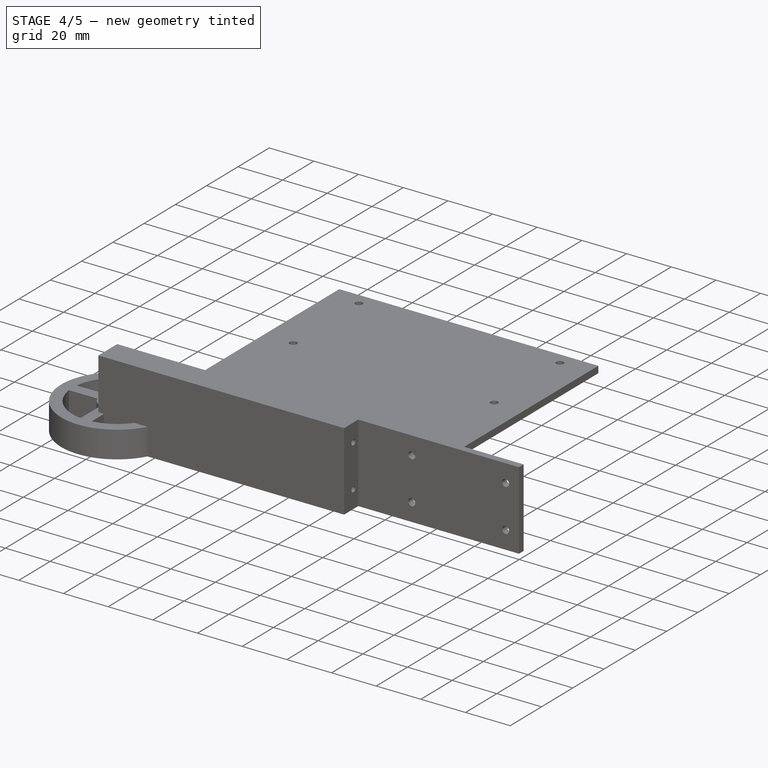
[diagram: stage 4 of 5 — iso view after this stage's code; geometry added in this stage tinted green]
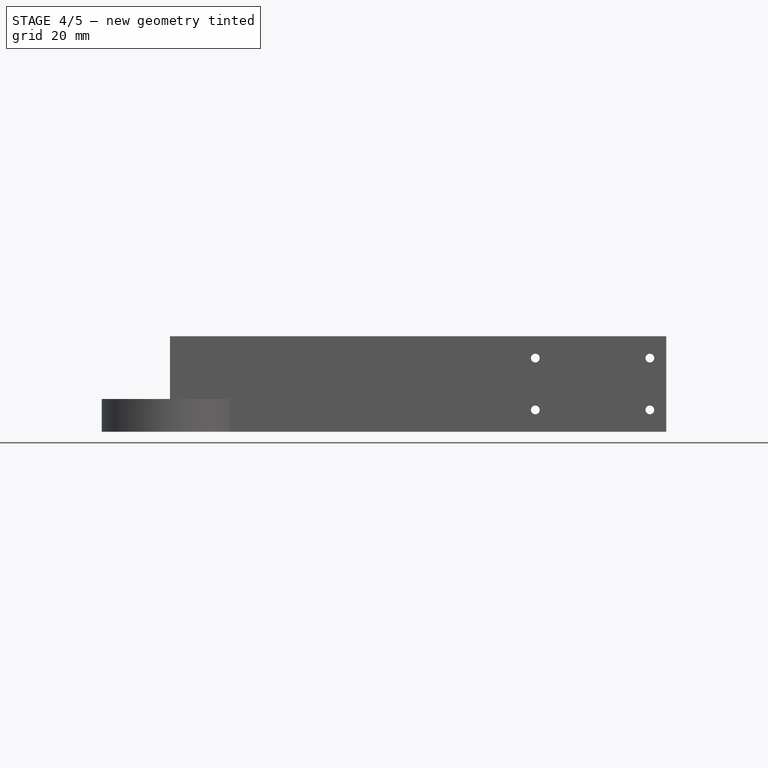
[diagram: stage 4 of 5 — front view after this stage's code; geometry added in this stage tinted green]
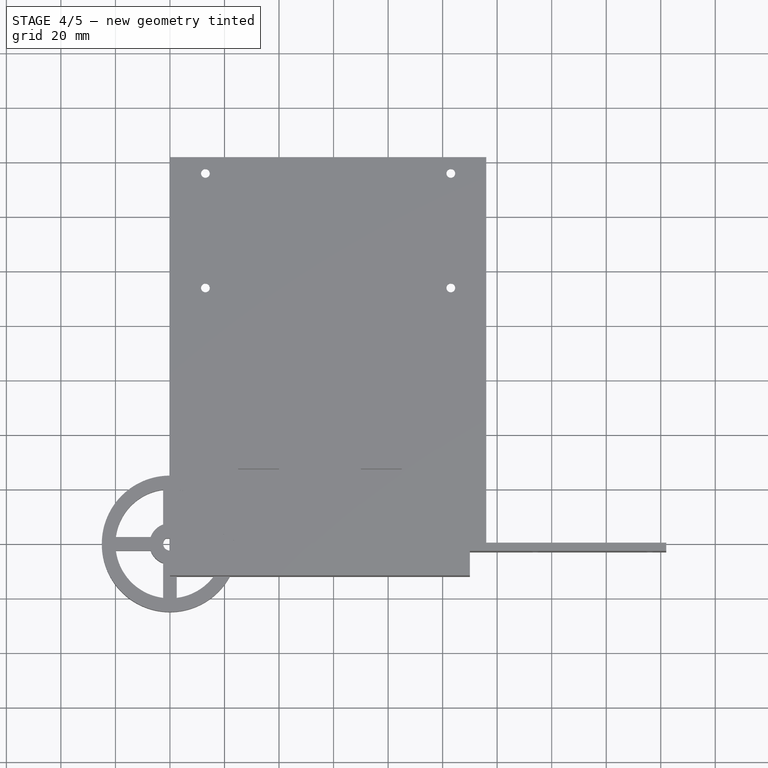
[diagram: stage 4 of 5 — top view after this stage's code; geometry added in this stage tinted green]
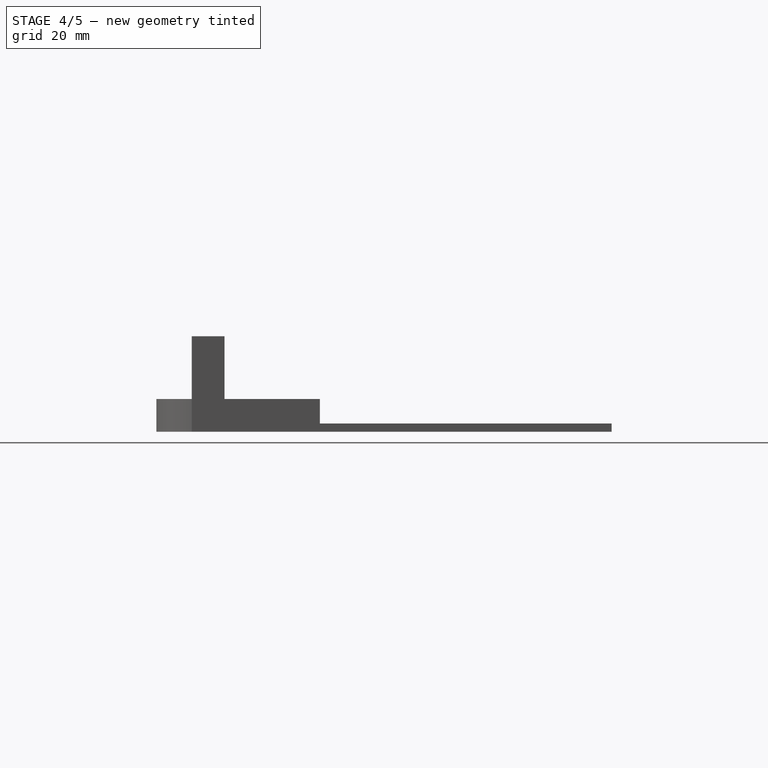
[diagram: stage 4 of 5 — right view after this stage's code; geometry added in this stage tinted green]
FEATURE [PartDesign::Body] Body002  label="SideBody"
  Group = -> [Sketch002,Pad002]
  Origin = -> Origin002
  Tip = -> Pad002
FEATURE [Sketcher::SketchObject] Sketch003
  FullyConstrained = true
  MapMode = 5
  Placement = pos=(0,0,0) rot=(1,0,0;1.5708rad)
  Support = -> [XZ_Plane003]
  sketch-geometry (4):
    g0: LineSegment StartX=0 StartY=0 StartZ=0 EndX=110 EndY=0 EndZ=0
    g1: LineSegment StartX=110 StartY=0 StartZ=0 EndX=110 EndY=35 EndZ=0
    g2: LineSegment StartX=110 StartY=35 StartZ=0 EndX=0 EndY=35 EndZ=0
    g3: LineSegment StartX=0 StartY=35 StartZ=0 EndX=0 EndY=0 EndZ=0
  constraints (11):
    c: Coincident(g0,g1)
    c: Coincident(g1,g2)
    c: Coincident(g2,g3)
    c: Coincident(g3,g0)
    c: Horizontal(g0)
    c: Horizontal(g2)
    c: Vertical(g1)
    c: Vertical(g3)
    c: Coincident(g0,g-1)
    c: DistanceX(g2,g2) = 110
    c: DistanceY(g1,g1) = 35
FEATURE [PartDesign::Pad] Pad003
  Direction = (0,-1,-2e-16)
  Length = 12
  Length2 = 10
  Placement = pos=(0,0,0) rot=(1,0,0;1.5708rad)
  Profile = -> Sketch003
  ReferenceAxis = -> Sketch003 [N_Axis]
  Type = 0
FEATURE [Sketcher::SketchObject] Sketch004
  FullyConstrained = true
  MapMode = 5
  Placement = pos=(0,0,0) rot=(0.707107,0,-0.707107;3.14159rad)
  Support = -> [Pad003]
  sketch-geometry (2):
    g0: Circle CenterX=-27 CenterY=6 CenterZ=0 NormalX=0 NormalY=0 NormalZ=1 AngleXU=0 Radius=1.25
    g1: Circle CenterX=-8 CenterY=6 CenterZ=0 NormalX=0 NormalY=0 NormalZ=1 AngleXU=0 Radius=1.25
  constraints (6):
    c: Horizontal(g0,g1)
    c: DistanceY(g-1,g1) = 6
    c: DistanceX(g0,g1) = 19
    c: Diameter(g1) = 2.5
    c: Equal(g0,g1)
    c: DistanceX(g1,g-1) = 8
FEATURE [PartDesign::Pocket] Pocket
  BaseFeature = -> Pad003
  Direction = (1,0,2e-16)
  Length = 20
  Length2 = 5
  Placement = pos=(0,0,0) rot=(1,0,0;1.5708rad)
  Profile = -> Sketch004
  ReferenceAxis = -> Sketch004 [N_Axis]
  Type = 0
FEATURE [Sketcher::SketchObject] Sketch005
  FullyConstrained = true
  MapMode = 5
  Placement = pos=(110,0,0) rot=(0.707107,0,0.707107;3.14159rad)
  Support = -> [Pocket]
  sketch-geometry (2):
    g0: Circle CenterX=8 CenterY=6 CenterZ=0 NormalX=0 NormalY=0 NormalZ=1 AngleXU=0 Radius=1.25
    g1: Circle CenterX=27 CenterY=6 CenterZ=0 NormalX=0 NormalY=0 NormalZ=1 AngleXU=0 Radius=1.25
  constraints (6):
    c: Horizontal(g0,g1)
    c: Equal(g1,g0)
    c: DistanceX(g0,g1) = 19
    c: Diameter(g1) = 2.5
    c: DistanceX(g-1,g0) = 8
    c: DistanceY(g-1,g0) = 6
FEATURE [PartDesign::Pocket] Pocket001
  BaseFeature = -> Pocket
  Direction = (-1,0,2e-16)
  Length = 20
  Length2 = 5
  Placement = pos=(0,0,0) rot=(1,0,0;1.5708rad)
  Profile = -> Sketch005
  ReferenceAxis = -> Sketch005 [N_Axis]
  Type = 0
FEATURE [Sketcher::SketchObject] Sketch014
  FullyConstrained = true
  MapMode = 5
  Placement = pos=(0,0,0) rot=(-1,0,0;1.5708rad)
  Support = -> [Pocket007]
  sketch-geometry (4):
    g0: LineSegment StartX=0 StartY=0 StartZ=0 EndX=7.5 EndY=0 EndZ=0
    g1: LineSegment StartX=7.5 StartY=0 StartZ=0 EndX=7.5 EndY=-6 EndZ=0
    g2: LineSegment StartX=7.5 StartY=-6 StartZ=0 EndX=0 EndY=-6 EndZ=0
    g3: LineSegment StartX=0 StartY=-6 StartZ=0 EndX=0 EndY=0 EndZ=0
  constraints (11):
    c: Coincident(g0,g1)
    c: Coincident(g1,g2)
    c: Coincident(g2,g3)
    c: Coincident(g3,g0)
    c: Horizontal(g0)
    c: Horizontal(g2)
    c: Vertical(g1)
    c: Vertical(g3)
    c: Coincident(g0,g-1)
    c: DistanceX(g0,g0) = 7.5
    c: DistanceY(g1,g1) = 6
FEATURE [PartDesign::Pocket] Pocket008
  BaseFeature = -> Pocket007
  Direction = (0,-1,2e-16)
  Length = 12
  Length2 = 5
  Placement = pos=(0,0,0) rot=(1,0,0;1.5708rad)
  Profile = -> Sketch014
  ReferenceAxis = -> Sketch014 [N_Axis]
  Type = 0
FEATURE [Sketcher::SketchObject] Sketch015
  FullyConstrained = true
  MapMode = 5
  Placement = pos=(0,0,0) rot=(1,0,0;3.14159rad)
  Support = -> [Pocket008]
  sketch-geometry (8):
    g0: LineSegment StartX=25 StartY=8.5 StartZ=0 EndX=30 EndY=8.5 EndZ=0
    g1: LineSegment StartX=30 StartY=8.5 StartZ=0 EndX=30 EndY=3.5 EndZ=0
    g2: LineSegment StartX=30 StartY=3.5 StartZ=0 EndX=25 EndY=3.5 EndZ=0
    g3: LineSegment StartX=25 StartY=3.5 StartZ=0 EndX=25 EndY=8.5 EndZ=0
    g4: LineSegment StartX=80 StartY=8.5 StartZ=0 EndX=85 EndY=8.5 EndZ=0
    g5: LineSegment StartX=85 StartY=8.5 StartZ=0 EndX=85 EndY=3.5 EndZ=0
    g6: LineSegment StartX=85 StartY=3.5 StartZ=0 EndX=80 EndY=3.5 EndZ=0
    g7: LineSegment StartX=80 StartY=3.5 StartZ=0 EndX=80 EndY=8.5 EndZ=0
  constraints (24):
    c: Coincident(g0,g1)
    c: Coincident(g1,g2)
    c: Coincident(g2,g3)
    c: Coincident(g3,g0)
    c: Horizontal(g0)
    c: Horizontal(g2)
    c: Vertical(g1)
    c: Vertical(g3)
    c: Coincident(g4,g5)
    c: Coincident(g5,g6)
    c: Coincident(g6,g7)
    c: Coincident(g7,g4)
    c: Horizontal(g4)
    c: Horizontal(g6)
    c: Vertical(g5)
    c: Vertical(g7)
    c: Equal(g0,g1)
    c: Equal(g4,g5)
    c: Equal(g1,g7)
    c: Horizontal(g0,g4)
    c: DistanceY(g1,g1) = 5
    c: DistanceY(g-1,g2) = 3.5
    c: DistanceX(g-1,g2) = 25
    c: DistanceX(g-1,g5) = 85
FEATURE [PartDesign::Pocket] Pocket009
  BaseFeature = -> Pocket008
  Direction = (0,2e-16,1)
  Length = 10
  Length2 = 5
  Placement = pos=(0,0,0) rot=(1,0,0;1.5708rad)
  Profile = -> Sketch015
  ReferenceAxis = -> Sketch015 [N_Axis]
  Type = 0
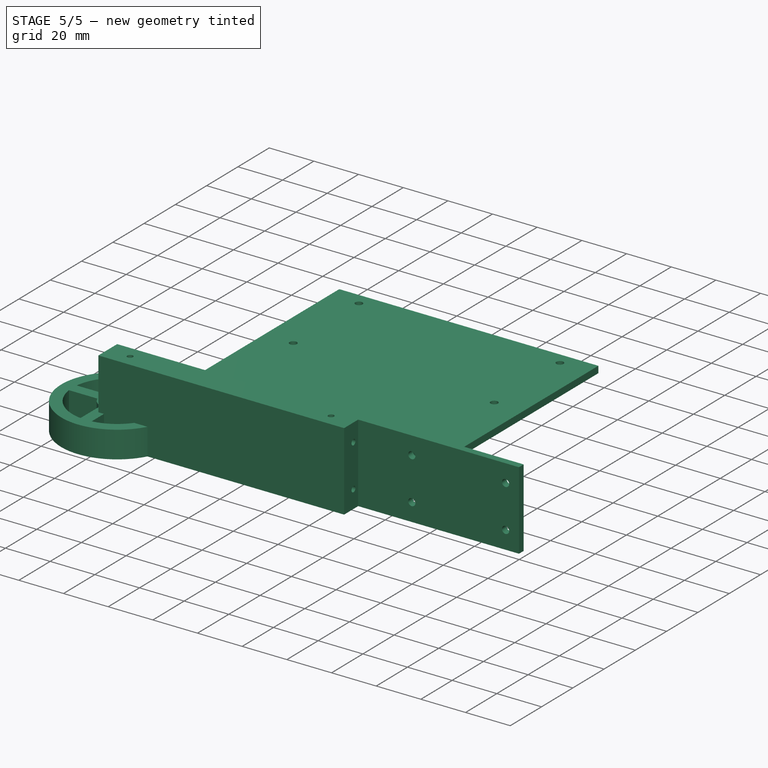
[diagram: stage 5 of 5 — iso view after this stage's code; geometry added in this stage tinted green]
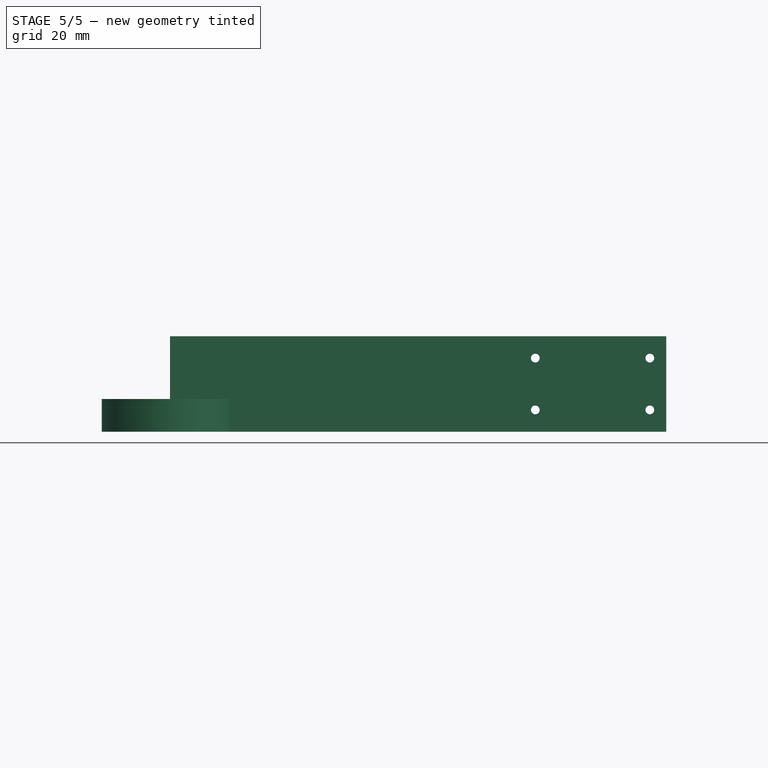
[diagram: stage 5 of 5 — front view after this stage's code; geometry added in this stage tinted green]
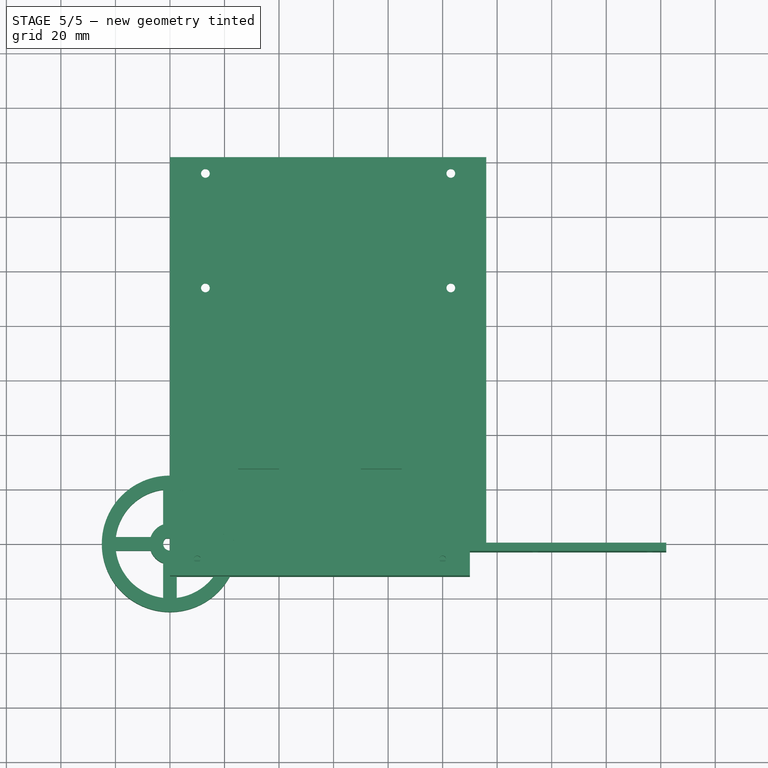
[diagram: stage 5 of 5 — top view after this stage's code; geometry added in this stage tinted green]
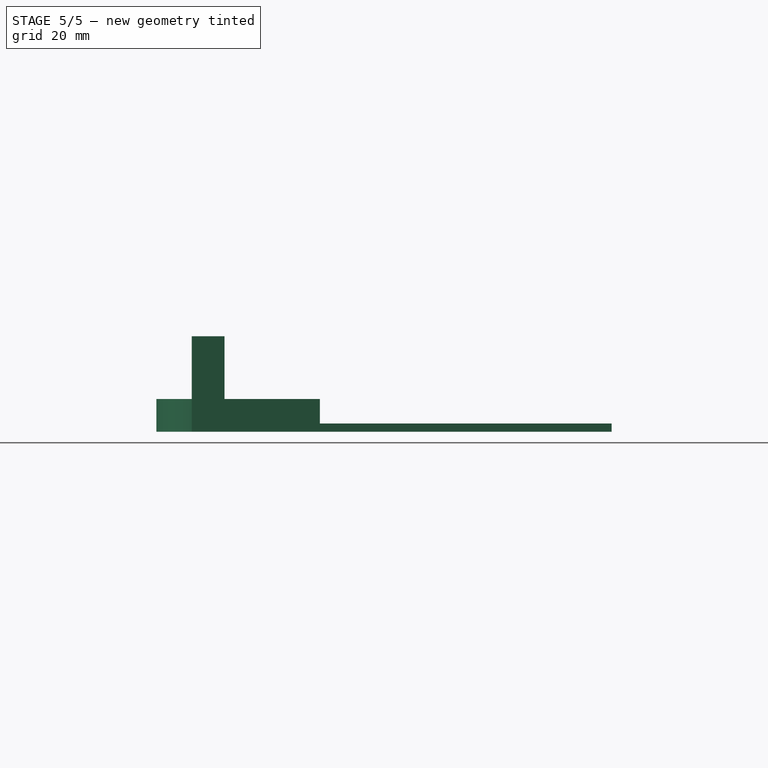
[diagram: stage 5 of 5 — right view after this stage's code; geometry added in this stage tinted green]
FEATURE [Sketcher::SketchObject] Sketch
  FullyConstrained = true
  MapMode = 5
  Support = -> [XY_Plane]
  sketch-geometry (20):
    g0: Circle CenterX=0 CenterY=0 CenterZ=0 NormalX=0 NormalY=0 NormalZ=1 AngleXU=0 Radius=25
    g1: ArcOfCircle CenterX=0 CenterY=0 CenterZ=0 NormalX=0 NormalY=0 NormalZ=1 AngleXU=0 Radius=20 StartAngle=1.69612 EndAngle=3.01626
    g2: ArcOfCircle CenterX=0 CenterY=0 CenterZ=0 NormalX=0 NormalY=0 NormalZ=1 AngleXU=0 Radius=7.5 StartAngle=3.48143 EndAngle=4.37255
    g3: LineSegment StartX=-2.5 StartY=7.07107 StartZ=0 EndX=-2.5 EndY=19.8431 EndZ=0
    g4: LineSegment StartX=2.5 StartY=7.07107 StartZ=0 EndX=2.5 EndY=19.8431 EndZ=0
    g5: LineSegment StartX=7.07107 StartY=2.5 StartZ=0 EndX=19.8431 EndY=2.5 EndZ=0
    g6: LineSegment StartX=7.07107 StartY=-2.5 StartZ=0 EndX=19.8431 EndY=-2.5 EndZ=0
    g7: LineSegment StartX=-19.8431 StartY=2.5 StartZ=0 EndX=-7.07107 EndY=2.5 EndZ=0
    g8: LineSegment StartX=-19.8431 StartY=-2.5 StartZ=0 EndX=-7.07107 EndY=-2.5 EndZ=0
    g9: LineSegment StartX=-2.5 StartY=-7.07107 StartZ=0 EndX=-2.5 EndY=-19.8431 EndZ=0
    g10: LineSegment StartX=2.5 StartY=-7.07107 StartZ=0 EndX=2.5 EndY=-19.8431 EndZ=0
    g11: ArcOfCircle CenterX=0 CenterY=0 CenterZ=0 NormalX=0 NormalY=0 NormalZ=1 AngleXU=0 Radius=20 StartAngle=3.26692 EndAngle=4.58706
    g12: ArcOfCircle CenterX=0 CenterY=0 CenterZ=0 NormalX=0 NormalY=0 NormalZ=1 AngleXU=0 Radius=20 StartAngle=4.83772 EndAngle=6.15786
    g13: ArcOfCircle CenterX=0 CenterY=0 CenterZ=0 NormalX=0 NormalY=0 NormalZ=1 AngleXU=0 Radius=20 StartAngle=0.125328 EndAngle=1.44547
    g14: ArcOfCircle CenterX=0 CenterY=0 CenterZ=0 NormalX=0 NormalY=0 NormalZ=1 AngleXU=0 Radius=7.5 StartAngle=1.91063 EndAngle=2.80176
    g15: ArcOfCircle CenterX=0 CenterY=0 CenterZ=0 NormalX=0 NormalY=0 NormalZ=1 AngleXU=0 Radius=7.5 StartAngle=0.339837 EndAngle=1.23096
    g16: ArcOfCircle CenterX=0 CenterY=0 CenterZ=0 NormalX=0 NormalY=0 NormalZ=1 AngleXU=0 Radius=7.5 StartAngle=5.05223 EndAngle=5.94335
    g17: ArcOfCircle CenterX=0 CenterY=0 CenterZ=0 NormalX=0 NormalY=0 NormalZ=1 AngleXU=0 Radius=2.5 StartAngle=2.2143 EndAngle=7.21048
    g18: LineSegment StartX=-1.5 StartY=2 StartZ=0 EndX=1.5 EndY=2 EndZ=0
    g19: LineSegment StartX=-1.5 StartY=-2.5 StartZ=0 EndX=1.5 EndY=-2.5 EndZ=0
  constraints (64):
    c: Coincident(g0,g-1)
    c: Diameter(g0) = 50
    c: Coincident(g1,g0)
    c: Diameter(g1) = 40
    c: Coincident(g2,g0)
    c: Diameter(g2) = 15
    c: Vertical(g3)
    c: Vertical(g4)
    c: Horizontal(g5)
    c: PointOnObject(g5,g1)
    c: PointOnObject(g6,g1)
    c: Horizontal(g7)
    c: Horizontal(g8)
    c: PointOnObject(g9,g1)
    c: Vertical(g9)
    c: PointOnObject(g10,g1)
    c: Equal(g6,g5)
    c: Equal(g10,g9)
    c: Horizontal(g6)
    c: Vertical(g10)
    c: Equal(g3,g4)
    c: Equal(g7,g8)
    c: Horizontal(g7,g5)
    c: Vertical(g3,g9)
    c: DistanceX(g3,g4) = 5
    c: DistanceY(g6,g5) = 5
    c: Coincident(g13,g4)
    c: Coincident(g1,g3)
    c: Equal(g1,g11)
    c: Coincident(g1,g7)
    c: Coincident(g11,g8)
    c: Coincident(g1,g11)
    c: Equal(g11,g12)
    c: PointOnObject(g11,g9)
    c: PointOnObject(g12,g10)
    c: Coincident(g11,g12)
    c: Equal(g12,g13)
    c: PointOnObject(g12,g6)
    c: PointOnObject(g13,g5)
    c: Coincident(g12,g13)
    c: Coincident(g14,g7)
    c: Coincident(g2,g8)
    c: Equal(g2,g14)
    c: Coincident(g15,g4)
    c: Coincident(g14,g3)
    c: Coincident(g2,g14)
    c: Equal(g2,g15)
    c: Coincident(g16,g6)
    c: Coincident(g15,g5)
    c: Coincident(g2,g15)
    c: Equal(g2,g16)
    c: Coincident(g2,g9)
    c: Coincident(g16,g10)
    c: Coincident(g2,g16)
    c: Coincident(g17,g0)
    c: Diameter(g17) = 5
    c: Horizontal(g18)
    c: Horizontal(g19)
    c: Tangent(g19,g17)
    c: Vertical(g18,g19)
    c: Equal(g18,g19)
    c: DistanceY(g19,g18) = 4.5
    c: Coincident(g17,g18)
    c: Coincident(g17,g18)
FEATURE [PartDesign::Pad] Pad
  Direction = (0,0,1)
  Length = 12
  Length2 = 10
  Profile = -> Sketch
  ReferenceAxis = -> Sketch [N_Axis]
  Type = 0
FEATURE [PartDesign::Body] Body  label="WheelBody"
  Group = -> [Sketch,Pad]
  Origin = -> Origin
  Placement = pos=(18,-19,18) rot=(-1,0,0;1.5708rad)
  Tip = -> Pad
FEATURE [Sketcher::SketchObject] Sketch001
  FullyConstrained = true
  MapMode = 5
  Support = -> [XY_Plane001]
  sketch-geometry (2):
    g0: Circle CenterX=0 CenterY=0 CenterZ=0 NormalX=0 NormalY=0 NormalZ=1 AngleXU=0 Radius=25
    g1: Circle CenterX=0 CenterY=0 CenterZ=0 NormalX=0 NormalY=0 NormalZ=1 AngleXU=0 Radius=23.5
  constraints (4):
    c: Coincident(g0,g-1)
    c: Coincident(g1,g0)
    c: Diameter(g1) = 47
    c: Diameter(g0) = 50
FEATURE [PartDesign::Pad] Pad001
  Direction = (0,0,1)
  Length = 12
  Length2 = 10
  Profile = -> Sketch001
  ReferenceAxis = -> Sketch001 [N_Axis]
  Type = 0
FEATURE [PartDesign::Body] Body001  label="WheelRubberBody"
  Group = -> [Sketch001,Pad001]
  Origin = -> Origin001
  Placement = pos=(18,-7,18) rot=(1,0,0;1.5708rad)
  Tip = -> Pad001
FEATURE [Sketcher::SketchObject] Sketch002
  FullyConstrained = true
  MapMode = 5
  Placement = pos=(0,0,0) rot=(1,0,0;1.5708rad)
  Support = -> [XZ_Plane002]
  sketch-geometry (19):
    g0: LineSegment StartX=0 StartY=0 StartZ=0 EndX=182 EndY=0 EndZ=0
    g1: LineSegment StartX=182 StartY=0 StartZ=0 EndX=182 EndY=35 EndZ=0
    g2: LineSegment StartX=182 StartY=35 StartZ=0 EndX=0 EndY=35 EndZ=0
    g3: LineSegment StartX=0 StartY=35 StartZ=0 EndX=0 EndY=0 EndZ=0
    g4: Circle CenterX=17.5 CenterY=17.5 CenterZ=0 NormalX=0 NormalY=0 NormalZ=1 AngleXU=0 Radius=11.5
    g5: Circle CenterX=4.5 CenterY=30.5 CenterZ=0 NormalX=0 NormalY=0 NormalZ=1 AngleXU=0 Radius=1.6
    g6: Circle CenterX=30.5 CenterY=30.5 CenterZ=0 NormalX=0 NormalY=0 NormalZ=1 AngleXU=0 Radius=1.6
    g7: Circle CenterX=4.5 CenterY=4.5 CenterZ=0 NormalX=0 NormalY=0 NormalZ=1 AngleXU=0 Radius=1.6
    g8: Circle CenterX=30.5 CenterY=4.5 CenterZ=0 NormalX=0 NormalY=0 NormalZ=1 AngleXU=0 Radius=1.6
    g9: Circle CenterX=134 CenterY=27 CenterZ=0 NormalX=0 NormalY=0 NormalZ=1 AngleXU=0 Radius=1.6
    g10: Circle CenterX=134 CenterY=8 CenterZ=0 NormalX=0 NormalY=0 NormalZ=1 AngleXU=0 Radius=1.6
    g11: LineSegment StartX=35 StartY=35 StartZ=0 EndX=35 EndY=0 EndZ=0
    g12: LineSegment StartX=0 StartY=35 StartZ=0 EndX=35 EndY=0 EndZ=0
    g13: LineSegment StartX=35 StartY=35 StartZ=0 EndX=17.5 EndY=17.5 EndZ=0
    g14: LineSegment StartX=17.5 StartY=17.5 StartZ=0 EndX=0 EndY=0 EndZ=0
    g15: Circle CenterX=46 CenterY=27 CenterZ=0 NormalX=0 NormalY=0 NormalZ=1 AngleXU=0 Radius=1.6
    g16: Circle CenterX=46 CenterY=8 CenterZ=0 NormalX=0 NormalY=0 NormalZ=1 AngleXU=0 Radius=1.6
    g17: Circle CenterX=176 CenterY=27 CenterZ=0 NormalX=0 NormalY=0 NormalZ=1 AngleXU=0 Radius=1.6
    g18: Circle CenterX=176 CenterY=8 CenterZ=0 NormalX=0 NormalY=0 NormalZ=1 AngleXU=0 Radius=1.6
  constraints (54):
    c: Coincident(g0,g1)
    c: Coincident(g1,g2)
    c: Coincident(g2,g3)
    c: Coincident(g3,g0)
    c: Horizontal(g0)
    c: Horizontal(g2)
    c: Vertical(g1)
    c: Vertical(g3)
    c: Coincident(g0,g-1)
    c: Equal(g5,g6)
    c: Equal(g7,g8)
    c: Equal(g7,g5)
    c: Horizontal(g5,g6)
    c: Horizontal(g7,g8)
    c: Vertical(g5,g7)
    c: Vertical(g6,g8)
    c: Diameter(g4) = 23
    c: DistanceX(g2,g2) = 182
    c: Equal(g9,g10)
    c: Equal(g6,g9)
    c: Vertical(g9,g10)
    c: DistanceX(g5,g6) = 26
    c: DistanceY(g7,g5) = 26
    c: DistanceY(g1,g1) = 35
    c: PointOnObject(g11,g2)
    c: PointOnObject(g11,g0)
    c: Vertical(g11)
    c: Coincident(g2,g12)
    c: Coincident(g12,g11)
    c: Coincident(g11,g13)
    c: PointOnObject(g13,g12)
    c: Coincident(g13,g14)
    c: Coincident(g14,g0)
    c: Parallel(g14,g13)
    c: DistanceX(g2,g11) = 35
    c: PointOnObject(g6,g13)
    c: PointOnObject(g5,g12)
    c: Coincident(g4,g13)
    c: Vertical(g15,g16)
    c: DistanceX(g9,g1) = 48
    c: DistanceY(g16,g15) = 19
    c: DistanceX(g15,g1) = 136
    c: DistanceY(g15,g2) = 8
    c: Equal(g15,g6)
    c: Equal(g16,g8)
    c: Diameter(g9) = 3.2
    c: Equal(g9,g17)
    c: Equal(g17,g18)
    c: Horizontal(g15,g9)
    c: Horizontal(g9,g17)
    c: Horizontal(g10,g18)
    c: Horizontal(g10,g16)
    c: Vertical(g17,g18)
    c: DistanceX(g17,g1) = 6
FEATURE [PartDesign::Pad] Pad002
  Direction = (0,-1,-2e-16)
  Length = 3
  Length2 = 10
  Placement = pos=(0,0,0) rot=(1,0,0;1.5708rad)
  Profile = -> Sketch002
  ReferenceAxis = -> Sketch002 [N_Axis]
  Type = 0
FEATURE [Sketcher::SketchObject] Sketch010
  FullyConstrained = true
  MapMode = 5
  Placement = pos=(0,0,0) rot=(1,0,0;3.14159rad)
  Support = -> [Pocket001]
  sketch-geometry (2):
    g0: Circle CenterX=10 CenterY=6 CenterZ=0 NormalX=0 NormalY=0 NormalZ=1 AngleXU=0 Radius=1.25
    g1: Circle CenterX=100 CenterY=6 CenterZ=0 NormalX=0 NormalY=0 NormalZ=1 AngleXU=0 Radius=1.25
  constraints (6):
    c: Equal(g0,g1)
    c: Horizontal(g0,g1)
    c: Diameter(g1) = 2.5
    c: DistanceX(g-1,g0) = 10
    c: DistanceX(g-1,g1) = 100
    c: DistanceY(g-1,g0) = 6
FEATURE [PartDesign::Pocket] Pocket004
  BaseFeature = -> Pocket001
  Direction = (0,-2e-16,1)
  Length = 7
  Length2 = 5
  Placement = pos=(0,0,0) rot=(1,0,0;1.5708rad)
  Profile = -> Sketch010
  ReferenceAxis = -> Sketch010 [N_Axis]
  Type = 0
FEATURE [Sketcher::SketchObject] Sketch011
  FullyConstrained = true
  MapMode = 5
  Placement = pos=(0,7.8e-15,35) rot=(0,0,1;3.14159rad)
  Support = -> [Pocket004]
  sketch-geometry (2):
    g0: Circle CenterX=-100 CenterY=6 CenterZ=0 NormalX=0 NormalY=0 NormalZ=1 AngleXU=0 Radius=1.25
    g1: Circle CenterX=-10 CenterY=6 CenterZ=0 NormalX=0 NormalY=0 NormalZ=1 AngleXU=0 Radius=1.25
  constraints (6):
    c: Horizontal(g0,g1)
    c: Equal(g0,g1)
    c: Diameter(g1) = 2.5
    c: DistanceY(g-1,g1) = 6
    c: DistanceX(g1,g-1) = 10
    c: DistanceX(g0,g-1) = 100
FEATURE [PartDesign::Pocket] Pocket005
  BaseFeature = -> Pocket004
  Direction = (0,2e-16,-1)
  Length = 7
  Length2 = 5
  Placement = pos=(0,0,0) rot=(1,0,0;1.5708rad)
  Profile = -> Sketch011
  ReferenceAxis = -> Sketch011 [N_Axis]
  Type = 0
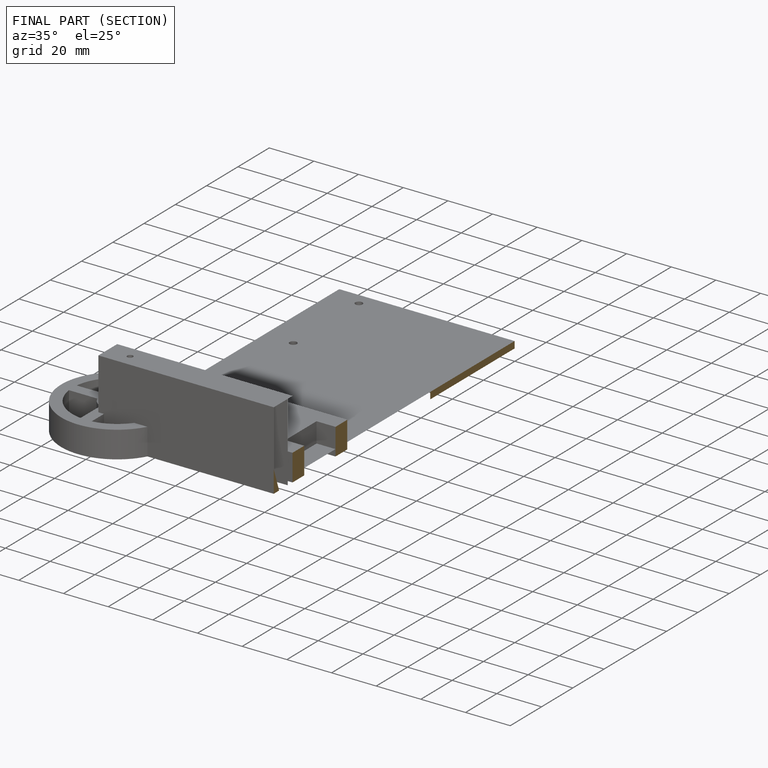
[diagram: finished part — half-section view (interior)]
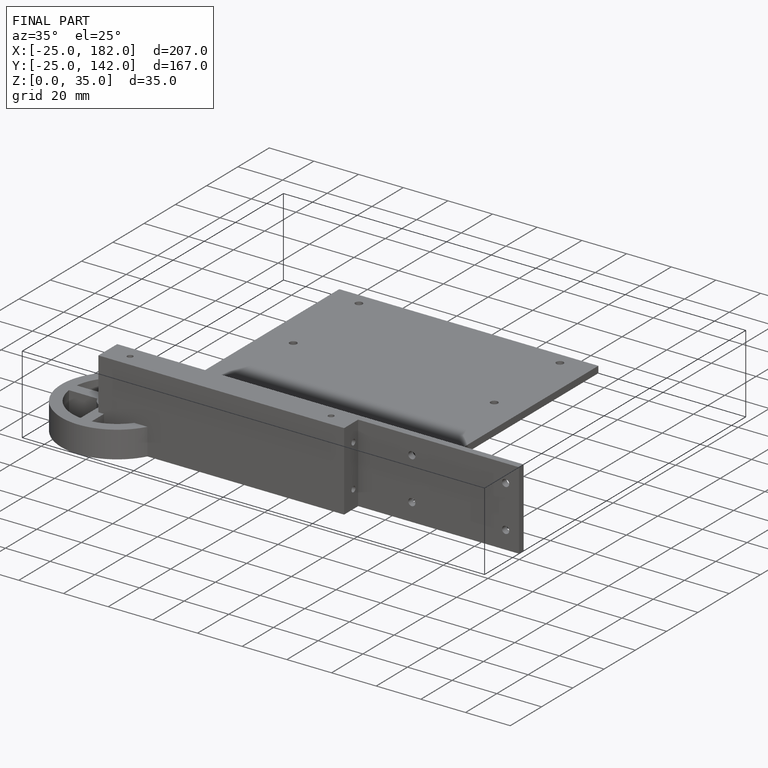
[diagram: finished part — iso view with bounding-box wireframe]
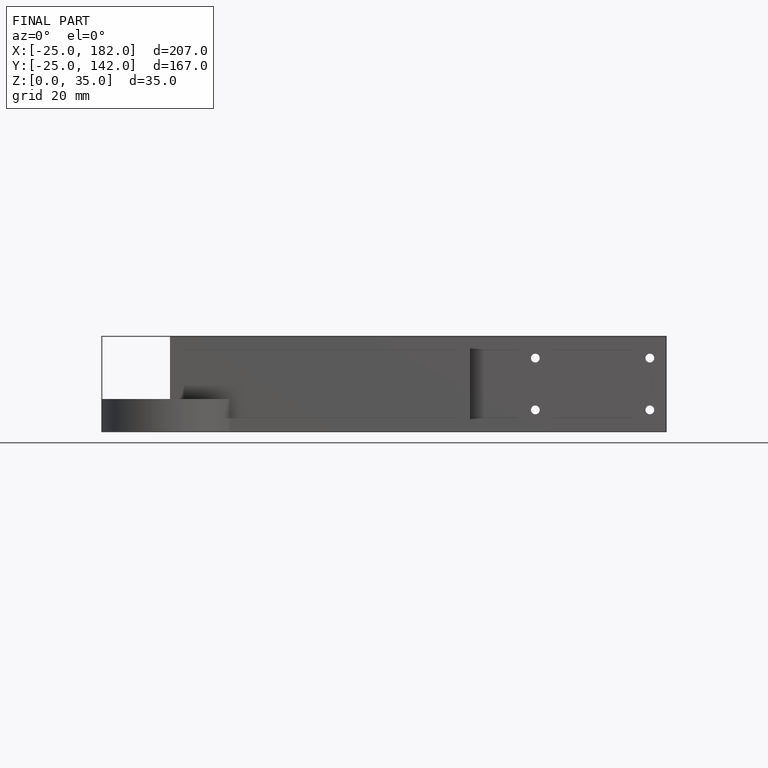
[diagram: finished part — front view with bounding-box wireframe]
